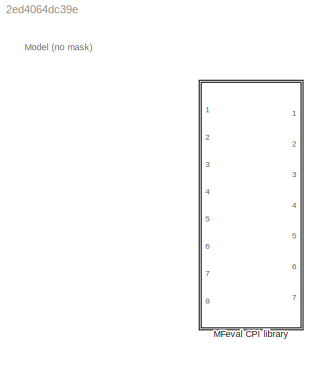
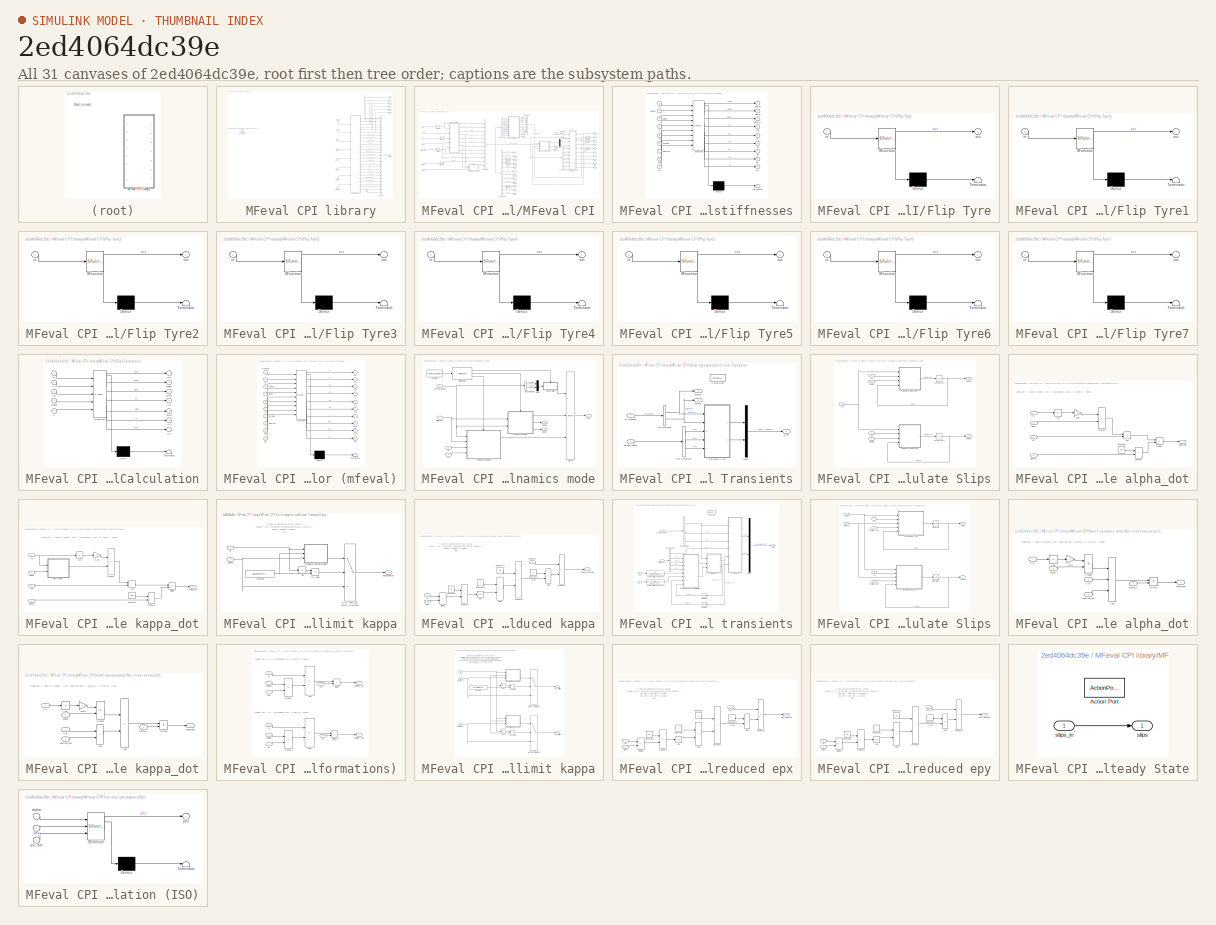
[diagram: thumbnail index - all 31 canvases of the model, root first then tree order]
MODEL slx_2ed4064dc39e
KIND library
CONFIG AbsTol = auto
CONFIG EnableMultiTasking = off
CONFIG FixedStep = auto
CONFIG MaxStep = auto
CONFIG MinStep = auto
CONFIG RelTol = 1e-3
CONFIG SampleTimeConstraint = Unconstrained
CONFIG SolverName = VariableStepAuto
CONFIG StartTime = 0.0
CONFIG StopTime = 10.0
BLOCK [SubSystem] MFeval CPI library
  Ports = [8, 7]
  RequestExecContextInheritance = off
BLOCK [BusCreator] MFeval CPI library/Bus Creator
  DisplayOption = bar
  InheritFromInputs = on
  Inputs = 27
  Ports = [27, 1]
BLOCK [Inport] MFeval CPI library/Camber
  Port = 4
BLOCK [Outport] MFeval CPI library/Fx
  VectorParamsAs1DForOutWhenUnconnected = off
BLOCK [Outport] MFeval CPI library/Fy
  Port = 2
  VectorParamsAs1DForOutWhenUnconnected = off
BLOCK [Inport] MFeval CPI library/Fz
  Port = 6
BLOCK [Outport] MFeval CPI library/Fz 
  Port = 3
  VectorParamsAs1DForOutWhenUnconnected = off
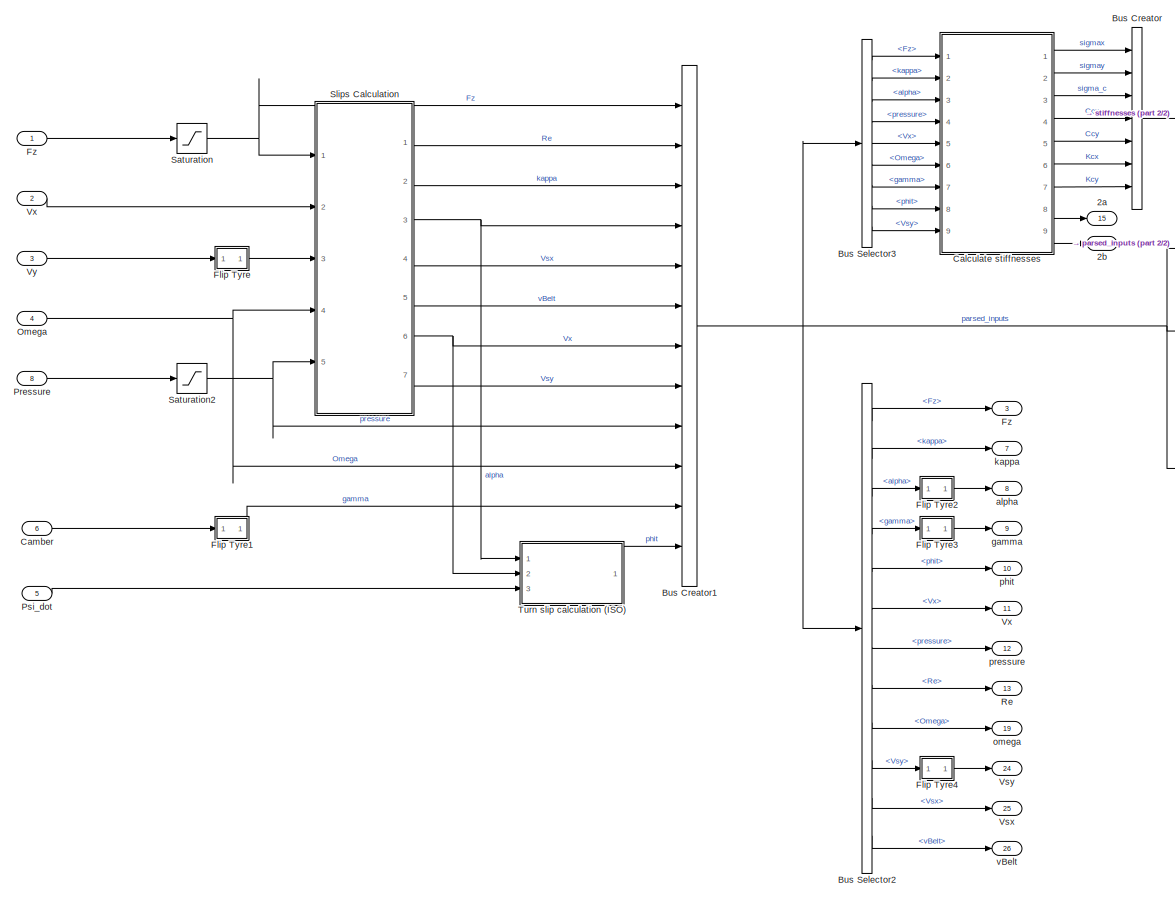
[diagram: MFeval CPI library/MFeval CPI - part 1/2, left side, full height]
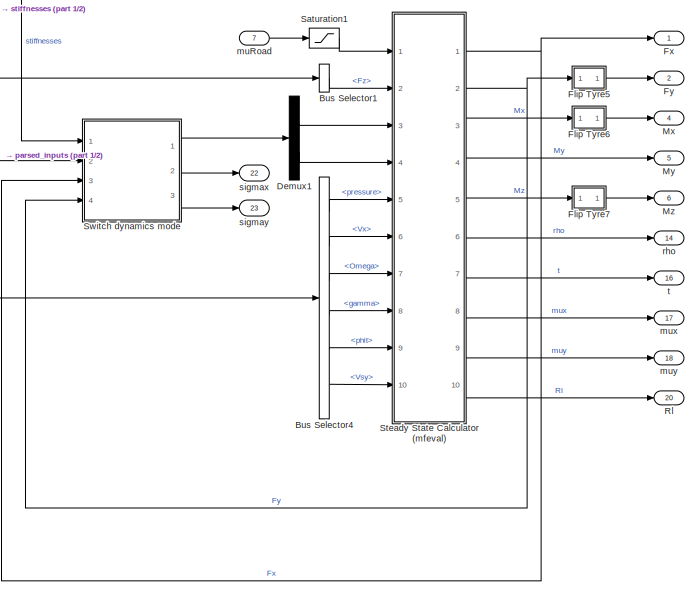
[diagram: MFeval CPI library/MFeval CPI - part 2/2, middle right region]
BLOCK [SubSystem] MFeval CPI library/MFeval CPI
  Ports = [8, 26]
  RequestExecContextInheritance = off
BLOCK [Outport] MFeval CPI library/MFeval CPI/2a
  Port = 15
  VectorParamsAs1DForOutWhenUnconnected = off
BLOCK [Outport] MFeval CPI library/MFeval CPI/2b
  Port = 21
  VectorParamsAs1DForOutWhenUnconnected = off
BLOCK [BusCreator] MFeval CPI library/MFeval CPI/Bus Creator
  DisplayOption = bar
  InheritFromInputs = on
  Inputs = 7
  Ports = [7, 1]
BLOCK [BusCreator] MFeval CPI library/MFeval CPI/Bus Creator1
  DisplayOption = bar
  InheritFromInputs = on
  Inputs = 12
  Ports = [12, 1]
BLOCK [BusSelector] MFeval CPI library/MFeval CPI/Bus Selector1
  OutputSignals = Fz
  Ports = [1, 1]
BLOCK [BusSelector] MFeval CPI library/MFeval CPI/Bus Selector2
  OutputSignals = Fz,kappa,alpha,gamma,phit,Vx,pressure,Re,Omega,Vsy,Vsx,vBelt
  Ports = [1, 12]
BLOCK [BusSelector] MFeval CPI library/MFeval CPI/Bus Selector3
  OutputSignals = Fz,kappa,alpha,pressure,Vx,Omega,gamma,phit,Vsy
  Ports = [1, 9]
BLOCK [BusSelector] MFeval CPI library/MFeval CPI/Bus Selector4
  OutputSignals = pressure,Vx,Omega,gamma,phit,Vsy
  Ports = [1, 6]
BLOCK [SubSystem] MFeval CPI library/MFeval CPI/Calculate stiffnesses
  ErrorFcn = Stateflow.Translate.translate
  PermitHierarchicalResolution = ExplicitOnly
  Ports = [9, 9]
  RequestExecContextInheritance = off
  SFBlockType = MATLAB Function
  TreatAsAtomicUnit = on
BLOCK [Demux] MFeval CPI library/MFeval CPI/Calculate stiffnesses/ Demux 
  Outputs = 1
  Ports = [1, 1]
BLOCK [S-Function] MFeval CPI library/MFeval CPI/Calculate stiffnesses/ SFunction 
  EnableBusSupport = off
  FunctionName = sf_sfun
  Parameters = parameterStruct,userDynamics,userUseMode
  PortCounts = [9 10]
  Ports = [9, 10]
  SFcnIsStateOwnerBlock = off
  SFunctionDeploymentMode = off
  Tag = Stateflow S-Function 17
BLOCK [Terminator] MFeval CPI library/MFeval CPI/Calculate stiffnesses/ Terminator 
BLOCK [Outport] MFeval CPI library/MFeval CPI/Calculate stiffnesses/Ccx
  Port = 4
  VectorParamsAs1DForOutWhenUnconnected = off
BLOCK [Outport] MFeval CPI library/MFeval CPI/Calculate stiffnesses/Ccy
  Port = 5
  VectorParamsAs1DForOutWhenUnconnected = off
BLOCK [Inport] MFeval CPI library/MFeval CPI/Calculate stiffnesses/Fz
BLOCK [Outport] MFeval CPI library/MFeval CPI/Calculate stiffnesses/Kcx
  Port = 6
  VectorParamsAs1DForOutWhenUnconnected = off
BLOCK [Outport] MFeval CPI library/MFeval CPI/Calculate stiffnesses/Kcy
  Port = 7
  VectorParamsAs1DForOutWhenUnconnected = off
BLOCK [Inport] MFeval CPI library/MFeval CPI/Calculate stiffnesses/Vsy
  Port = 9
BLOCK [Inport] MFeval CPI library/MFeval CPI/Calculate stiffnesses/Vx
  Port = 5
BLOCK [Outport] MFeval CPI library/MFeval CPI/Calculate stiffnesses/a2
  Port = 8
  VectorParamsAs1DForOutWhenUnconnected = off
BLOCK [Inport] MFeval CPI library/MFeval CPI/Calculate stiffnesses/alpha
  Port = 3
BLOCK [Outport] MFeval CPI library/MFeval CPI/Calculate stiffnesses/b2
  Port = 9
  VectorParamsAs1DForOutWhenUnconnected = off
BLOCK [Inport] MFeval CPI library/MFeval CPI/Calculate stiffnesses/gamma
  Port = 7
BLOCK [Inport] MFeval CPI library/MFeval CPI/Calculate stiffnesses/kappa
  Port = 2
BLOCK [Inport] MFeval CPI library/MFeval CPI/Calculate stiffnesses/omega
  Port = 6
BLOCK [Inport] MFeval CPI library/MFeval CPI/Calculate stiffnesses/p
  Port = 4
BLOCK [Inport] MFeval CPI library/MFeval CPI/Calculate stiffnesses/phit
  Port = 8
BLOCK [Outport] MFeval CPI library/MFeval CPI/Calculate stiffnesses/sigma_c
  Port = 3
  VectorParamsAs1DForOutWhenUnconnected = off
BLOCK [Outport] MFeval CPI library/MFeval CPI/Calculate stiffnesses/sigmax
  VectorParamsAs1DForOutWhenUnconnected = off
BLOCK [Outport] MFeval CPI library/MFeval CPI/Calculate stiffnesses/sigmay
  Port = 2
  VectorParamsAs1DForOutWhenUnconnected = off
BLOCK [Inport] MFeval CPI library/MFeval CPI/Camber
  Port = 6
BLOCK [Demux] MFeval CPI library/MFeval CPI/Demux1
  Outputs = 2
  Ports = [1, 2]
BLOCK [SubSystem] MFeval CPI library/MFeval CPI/Flip Tyre
  ErrorFcn = Stateflow.Translate.translate
  PermitHierarchicalResolution = ExplicitOnly
  Ports = [1, 1]
  RequestExecContextInheritance = off
  SFBlockType = MATLAB Function
  TreatAsAtomicUnit = on
BLOCK [Demux] MFeval CPI library/MFeval CPI/Flip Tyre/ Demux 
  Outputs = 1
  Ports = [1, 1]
BLOCK [S-Function] MFeval CPI library/MFeval CPI/Flip Tyre/ SFunction 
  EnableBusSupport = off
  FunctionName = sf_sfun
  Parameters = flipSide
  PortCounts = [1 2]
  Ports = [1, 2]
  SFcnIsStateOwnerBlock = off
  SFunctionDeploymentMode = off
  Tag = Stateflow S-Function 7
BLOCK [Terminator] MFeval CPI library/MFeval CPI/Flip Tyre/ Terminator 
BLOCK [Inport] MFeval CPI library/MFeval CPI/Flip Tyre/in
BLOCK [Outport] MFeval CPI library/MFeval CPI/Flip Tyre/out
  VectorParamsAs1DForOutWhenUnconnected = off
BLOCK [SubSystem] MFeval CPI library/MFeval CPI/Flip Tyre1
  ErrorFcn = Stateflow.Translate.translate
  PermitHierarchicalResolution = ExplicitOnly
  Ports = [1, 1]
  RequestExecContextInheritance = off
  SFBlockType = MATLAB Function
  TreatAsAtomicUnit = on
BLOCK [Demux] MFeval CPI library/MFeval CPI/Flip Tyre1/ Demux 
  Outputs = 1
  Ports = [1, 1]
BLOCK [S-Function] MFeval CPI library/MFeval CPI/Flip Tyre1/ SFunction 
  EnableBusSupport = off
  FunctionName = sf_sfun
  Parameters = flipSide
  PortCounts = [1 2]
  Ports = [1, 2]
  SFcnIsStateOwnerBlock = off
  SFunctionDeploymentMode = off
  Tag = Stateflow S-Function 3
BLOCK [Terminator] MFeval CPI library/MFeval CPI/Flip Tyre1/ Terminator 
BLOCK [Inport] MFeval CPI library/MFeval CPI/Flip Tyre1/in
BLOCK [Outport] MFeval CPI library/MFeval CPI/Flip Tyre1/out
  VectorParamsAs1DForOutWhenUnconnected = off
BLOCK [SubSystem] MFeval CPI library/MFeval CPI/Flip Tyre2
  ErrorFcn = Stateflow.Translate.translate
  PermitHierarchicalResolution = ExplicitOnly
  Ports = [1, 1]
  RequestExecContextInheritance = off
  SFBlockType = MATLAB Function
  TreatAsAtomicUnit = on
BLOCK [Demux] MFeval CPI library/MFeval CPI/Flip Tyre2/ Demux 
  Outputs = 1
  Ports = [1, 1]
BLOCK [S-Function] MFeval CPI library/MFeval CPI/Flip Tyre2/ SFunction 
  EnableBusSupport = off
  FunctionName = sf_sfun
  Parameters = flipSide
  PortCounts = [1 2]
  Ports = [1, 2]
  SFcnIsStateOwnerBlock = off
  SFunctionDeploymentMode = off
  Tag = Stateflow S-Function 6
BLOCK [Terminator] MFeval CPI library/MFeval CPI/Flip Tyre2/ Terminator 
BLOCK [Inport] MFeval CPI library/MFeval CPI/Flip Tyre2/in
BLOCK [Outport] MFeval CPI library/MFeval CPI/Flip Tyre2/out
  VectorParamsAs1DForOutWhenUnconnected = off
BLOCK [SubSystem] MFeval CPI library/MFeval CPI/Flip Tyre3
  ErrorFcn = Stateflow.Translate.translate
  PermitHierarchicalResolution = ExplicitOnly
  Ports = [1, 1]
  RequestExecContextInheritance = off
  SFBlockType = MATLAB Function
  TreatAsAtomicUnit = on
BLOCK [Demux] MFeval CPI library/MFeval CPI/Flip Tyre3/ Demux 
  Outputs = 1
  Ports = [1, 1]
BLOCK [S-Function] MFeval CPI library/MFeval CPI/Flip Tyre3/ SFunction 
  EnableBusSupport = off
  FunctionName = sf_sfun
  Parameters = flipSide
  PortCounts = [1 2]
  Ports = [1, 2]
  SFcnIsStateOwnerBlock = off
  SFunctionDeploymentMode = off
  Tag = Stateflow S-Function 8
BLOCK [Terminator] MFeval CPI library/MFeval CPI/Flip Tyre3/ Terminator 
BLOCK [Inport] MFeval CPI library/MFeval CPI/Flip Tyre3/in
BLOCK [Outport] MFeval CPI library/MFeval CPI/Flip Tyre3/out
  VectorParamsAs1DForOutWhenUnconnected = off
BLOCK [SubSystem] MFeval CPI library/MFeval CPI/Flip Tyre4
  ErrorFcn = Stateflow.Translate.translate
  PermitHierarchicalResolution = ExplicitOnly
  Ports = [1, 1]
  RequestExecContextInheritance = off
  SFBlockType = MATLAB Function
  TreatAsAtomicUnit = on
BLOCK [Demux] MFeval CPI library/MFeval CPI/Flip Tyre4/ Demux 
  Outputs = 1
  Ports = [1, 1]
BLOCK [S-Function] MFeval CPI library/MFeval CPI/Flip Tyre4/ SFunction 
  EnableBusSupport = off
  FunctionName = sf_sfun
  Parameters = flipSide
  PortCounts = [1 2]
  Ports = [1, 2]
  SFcnIsStateOwnerBlock = off
  SFunctionDeploymentMode = off
  Tag = Stateflow S-Function 19
BLOCK [Terminator] MFeval CPI library/MFeval CPI/Flip Tyre4/ Terminator 
BLOCK [Inport] MFeval CPI library/MFeval CPI/Flip Tyre4/in
BLOCK [Outport] MFeval CPI library/MFeval CPI/Flip Tyre4/out
  VectorParamsAs1DForOutWhenUnconnected = off
BLOCK [SubSystem] MFeval CPI library/MFeval CPI/Flip Tyre5
  ErrorFcn = Stateflow.Translate.translate
  PermitHierarchicalResolution = ExplicitOnly
  Ports = [1, 1]
  RequestExecContextInheritance = off
  SFBlockType = MATLAB Function
  TreatAsAtomicUnit = on
BLOCK [Demux] MFeval CPI library/MFeval CPI/Flip Tyre5/ Demux 
  Outputs = 1
  Ports = [1, 1]
BLOCK [S-Function] MFeval CPI library/MFeval CPI/Flip Tyre5/ SFunction 
  EnableBusSupport = off
  FunctionName = sf_sfun
  Parameters = flipSide
  PortCounts = [1 2]
  Ports = [1, 2]
  SFcnIsStateOwnerBlock = off
  SFunctionDeploymentMode = off
  Tag = Stateflow S-Function 9
BLOCK [Terminator] MFeval CPI library/MFeval CPI/Flip Tyre5/ Terminator 
BLOCK [Inport] MFeval CPI library/MFeval CPI/Flip Tyre5/in
BLOCK [Outport] MFeval CPI library/MFeval CPI/Flip Tyre5/out
  VectorParamsAs1DForOutWhenUnconnected = off
BLOCK [SubSystem] MFeval CPI library/MFeval CPI/Flip Tyre6
  ErrorFcn = Stateflow.Translate.translate
  PermitHierarchicalResolution = ExplicitOnly
  Ports = [1, 1]
  RequestExecContextInheritance = off
  SFBlockType = MATLAB Function
  TreatAsAtomicUnit = on
BLOCK [Demux] MFeval CPI library/MFeval CPI/Flip Tyre6/ Demux 
  Outputs = 1
  Ports = [1, 1]
BLOCK [S-Function] MFeval CPI library/MFeval CPI/Flip Tyre6/ SFunction 
  EnableBusSupport = off
  FunctionName = sf_sfun
  Parameters = flipSide
  PortCounts = [1 2]
  Ports = [1, 2]
  SFcnIsStateOwnerBlock = off
  SFunctionDeploymentMode = off
  Tag = Stateflow S-Function 10
BLOCK [Terminator] MFeval CPI library/MFeval CPI/Flip Tyre6/ Terminator 
BLOCK [Inport] MFeval CPI library/MFeval CPI/Flip Tyre6/in
BLOCK [Outport] MFeval CPI library/MFeval CPI/Flip Tyre6/out
  VectorParamsAs1DForOutWhenUnconnected = off
BLOCK [SubSystem] MFeval CPI library/MFeval CPI/Flip Tyre7
  ErrorFcn = Stateflow.Translate.translate
  PermitHierarchicalResolution = ExplicitOnly
  Ports = [1, 1]
  RequestExecContextInheritance = off
  SFBlockType = MATLAB Function
  TreatAsAtomicUnit = on
BLOCK [Demux] MFeval CPI library/MFeval CPI/Flip Tyre7/ Demux 
  Outputs = 1
  Ports = [1, 1]
BLOCK [S-Function] MFeval CPI library/MFeval CPI/Flip Tyre7/ SFunction 
  EnableBusSupport = off
  FunctionName = sf_sfun
  Parameters = flipSide
  PortCounts = [1 2]
  Ports = [1, 2]
  SFcnIsStateOwnerBlock = off
  SFunctionDeploymentMode = off
  Tag = Stateflow S-Function 18
BLOCK [Terminator] MFeval CPI library/MFeval CPI/Flip Tyre7/ Terminator 
BLOCK [Inport] MFeval CPI library/MFeval CPI/Flip Tyre7/in
BLOCK [Outport] MFeval CPI library/MFeval CPI/Flip Tyre7/out
  VectorParamsAs1DForOutWhenUnconnected = off
BLOCK [Outport] MFeval CPI library/MFeval CPI/Fx
  VectorParamsAs1DForOutWhenUnconnected = off
BLOCK [Outport] MFeval CPI library/MFeval CPI/Fy
  Port = 2
  VectorParamsAs1DForOutWhenUnconnected = off
BLOCK [Inport] MFeval CPI library/MFeval CPI/Fz
BLOCK [Outport] MFeval CPI library/MFeval CPI/Fz 
  Port = 3
  VectorParamsAs1DForOutWhenUnconnected = off
BLOCK [Outport] MFeval CPI library/MFeval CPI/Mx
  Port = 4
  VectorParamsAs1DForOutWhenUnconnected = off
BLOCK [Outport] MFeval CPI library/MFeval CPI/My
  Port = 5
  VectorParamsAs1DForOutWhenUnconnected = off
BLOCK [Outport] MFeval CPI library/MFeval CPI/Mz
  Port = 6
  VectorParamsAs1DForOutWhenUnconnected = off
BLOCK [Inport] MFeval CPI library/MFeval CPI/Omega
  Port = 4
BLOCK [Inport] MFeval CPI library/MFeval CPI/Pressure
  Port = 8
BLOCK [Inport] MFeval CPI library/MFeval CPI/Psi_dot
  Port = 5
BLOCK [Outport] MFeval CPI library/MFeval CPI/Re
  Port = 13
  VectorParamsAs1DForOutWhenUnconnected = off
BLOCK [Outport] MFeval CPI library/MFeval CPI/Rl
  Port = 20
  VectorParamsAs1DForOutWhenUnconnected = off
BLOCK [Saturate] MFeval CPI library/MFeval CPI/Saturation
  LowerLimit = 1e-3
  UpperLimit = parameterStruct.FZMAX*2
  ZeroCross = off
BLOCK [Saturate] MFeval CPI library/MFeval CPI/Saturation1
  LowerLimit = 0
  UpperLimit = Inf
  ZeroCross = off
BLOCK [Saturate] MFeval CPI library/MFeval CPI/Saturation2
  LowerLimit = parameterStruct.PRESMIN
  UpperLimit = parameterStruct.PRESMAX
  ZeroCross = off
BLOCK [SubSystem] MFeval CPI library/MFeval CPI/Slips Calculation
  ErrorFcn = Stateflow.Translate.translate
  PermitHierarchicalResolution = ExplicitOnly
  Ports = [5, 7]
  RequestExecContextInheritance = off
  SFBlockType = MATLAB Function
  TreatAsAtomicUnit = on
BLOCK [Demux] MFeval CPI library/MFeval CPI/Slips Calculation/ Demux 
  Outputs = 1
  Ports = [1, 1]
BLOCK [S-Function] MFeval CPI library/MFeval CPI/Slips Calculation/ SFunction 
  EnableBusSupport = off
  FunctionName = sf_sfun
  Parameters = parameterStruct
  PortCounts = [5 8]
  Ports = [5, 8]
  SFcnIsStateOwnerBlock = off
  SFunctionDeploymentMode = off
  Tag = Stateflow S-Function 11
BLOCK [Terminator] MFeval CPI library/MFeval CPI/Slips Calculation/ Terminator 
BLOCK [Inport] MFeval CPI library/MFeval CPI/Slips Calculation/Fz
BLOCK [Outport] MFeval CPI library/MFeval CPI/Slips Calculation/Re
  VectorParamsAs1DForOutWhenUnconnected = off
BLOCK [Outport] MFeval CPI library/MFeval CPI/Slips Calculation/Vsx
  Port = 4
  VectorParamsAs1DForOutWhenUnconnected = off
BLOCK [Outport] MFeval CPI library/MFeval CPI/Slips Calculation/Vsy
  Port = 7
  VectorParamsAs1DForOutWhenUnconnected = off
BLOCK [Inport] MFeval CPI library/MFeval CPI/Slips Calculation/Vsy 
  Port = 3
BLOCK [Outport] MFeval CPI library/MFeval CPI/Slips Calculation/Vx
  Port = 6
  VectorParamsAs1DForOutWhenUnconnected = off
BLOCK [Inport] MFeval CPI library/MFeval CPI/Slips Calculation/Vx 
  Port = 2
BLOCK [Outport] MFeval CPI library/MFeval CPI/Slips Calculation/alpha
  Port = 3
  VectorParamsAs1DForOutWhenUnconnected = off
BLOCK [Outport] MFeval CPI library/MFeval CPI/Slips Calculation/kappa
  Port = 2
  VectorParamsAs1DForOutWhenUnconnected = off
BLOCK [Inport] MFeval CPI library/MFeval CPI/Slips Calculation/omega
  Port = 4
BLOCK [Inport] MFeval CPI library/MFeval CPI/Slips Calculation/p
  Port = 5
BLOCK [Outport] MFeval CPI library/MFeval CPI/Slips Calculation/vBelt
  Port = 5
  VectorParamsAs1DForOutWhenUnconnected = off
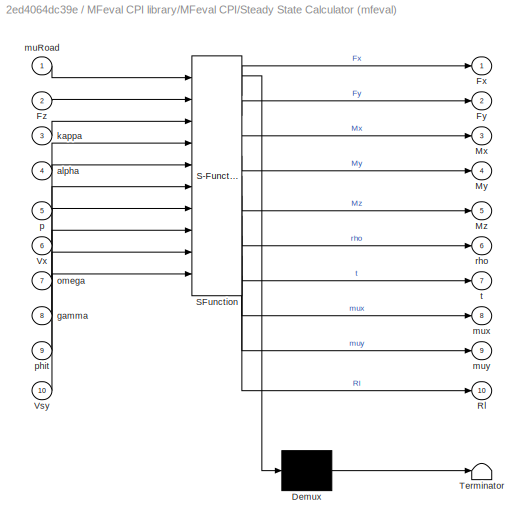
BLOCK [SubSystem] MFeval CPI library/MFeval CPI/Steady State Calculator (mfeval)
  ErrorFcn = Stateflow.Translate.translate
  PermitHierarchicalResolution = ExplicitOnly
  Ports = [10, 10]
  RequestExecContextInheritance = off
  SFBlockType = MATLAB Function
  TreatAsAtomicUnit = on
BLOCK [Demux] MFeval CPI library/MFeval CPI/Steady State Calculator (mfeval)/ Demux 
  Outputs = 1
  Ports = [1, 1]
BLOCK [S-Function] MFeval CPI library/MFeval CPI/Steady State Calculator (mfeval)/ SFunction 
  EnableBusSupport = off
  FunctionName = sf_sfun
  Parameters = parameterStruct,userDynamics,userUseMode
  PortCounts = [10 11]
  Ports = [10, 11]
  SFcnIsStateOwnerBlock = off
  SFunctionDeploymentMode = off
  Tag = Stateflow S-Function 4
BLOCK [Terminator] MFeval CPI library/MFeval CPI/Steady State Calculator (mfeval)/ Terminator 
BLOCK [Outport] MFeval CPI library/MFeval CPI/Steady State Calculator (mfeval)/Fx
  VectorParamsAs1DForOutWhenUnconnected = off
BLOCK [Outport] MFeval CPI library/MFeval CPI/Steady State Calculator (mfeval)/Fy
  Port = 2
  VectorParamsAs1DForOutWhenUnconnected = off
BLOCK [Inport] MFeval CPI library/MFeval CPI/Steady State Calculator (mfeval)/Fz
  Port = 2
BLOCK [Outport] MFeval CPI library/MFeval CPI/Steady State Calculator (mfeval)/Mx
  Port = 3
  VectorParamsAs1DForOutWhenUnconnected = off
BLOCK [Outport] MFeval CPI library/MFeval CPI/Steady State Calculator (mfeval)/My
  Port = 4
  VectorParamsAs1DForOutWhenUnconnected = off
BLOCK [Outport] MFeval CPI library/MFeval CPI/Steady State Calculator (mfeval)/Mz
  Port = 5
  VectorParamsAs1DForOutWhenUnconnected = off
BLOCK [Outport] MFeval CPI library/MFeval CPI/Steady State Calculator (mfeval)/Rl
  Port = 10
  VectorParamsAs1DForOutWhenUnconnected = off
BLOCK [Inport] MFeval CPI library/MFeval CPI/Steady State Calculator (mfeval)/Vsy
  Port = 10
BLOCK [Inport] MFeval CPI library/MFeval CPI/Steady State Calculator (mfeval)/Vx
  Port = 6
BLOCK [Inport] MFeval CPI library/MFeval CPI/Steady State Calculator (mfeval)/alpha
  Port = 4
BLOCK [Inport] MFeval CPI library/MFeval CPI/Steady State Calculator (mfeval)/gamma
  Port = 8
BLOCK [Inport] MFeval CPI library/MFeval CPI/Steady State Calculator (mfeval)/kappa
  Port = 3
BLOCK [Inport] MFeval CPI library/MFeval CPI/Steady State Calculator (mfeval)/muRoad
BLOCK [Outport] MFeval CPI library/MFeval CPI/Steady State Calculator (mfeval)/mux
  Port = 8
  VectorParamsAs1DForOutWhenUnconnected = off
BLOCK [Outport] MFeval CPI library/MFeval CPI/Steady State Calculator (mfeval)/muy
  Port = 9
  VectorParamsAs1DForOutWhenUnconnected = off
BLOCK [Inport] MFeval CPI library/MFeval CPI/Steady State Calculator (mfeval)/omega
  Port = 7
BLOCK [Inport] MFeval CPI library/MFeval CPI/Steady State Calculator (mfeval)/p
  Port = 5
BLOCK [Inport] MFeval CPI library/MFeval CPI/Steady State Calculator (mfeval)/phit
  Port = 9
BLOCK [Outport] MFeval CPI library/MFeval CPI/Steady State Calculator (mfeval)/rho
  Port = 6
  VectorParamsAs1DForOutWhenUnconnected = off
BLOCK [Outport] MFeval CPI library/MFeval CPI/Steady State Calculator (mfeval)/t
  Port = 7
  VectorParamsAs1DForOutWhenUnconnected = off
BLOCK [SubSystem] MFeval CPI library/MFeval CPI/Switch dynamics mode
  Ports = [4, 3]
  RequestExecContextInheritance = off
BLOCK [BusSelector] MFeval CPI library/MFeval CPI/Switch dynamics mode/Bus Selector5
  OutputSignals = kappa,alpha
  Ports = [1, 2]
BLOCK [Constant] MFeval CPI library/MFeval CPI/Switch dynamics mode/Constant
  Value = userDynamics
BLOCK [Inport] MFeval CPI library/MFeval CPI/Switch dynamics mode/Fx
  Port = 3
BLOCK [Inport] MFeval CPI library/MFeval CPI/Switch dynamics mode/Fy
  Port = 4
BLOCK [SubSystem] MFeval CPI library/MFeval CPI/Switch dynamics mode/Linear Transients
  Ports = [2, 3, 0, 0, 0, 0, 0, 1]
  RequestExecContextInheritance = off
  TreatAsAtomicUnit = on
BLOCK [ActionPort] MFeval CPI library/MFeval CPI/Switch dynamics mode/Linear Transients/Action Port
  ActionPortLabel = case: { }
BLOCK [BusSelector] MFeval CPI library/MFeval CPI/Switch dynamics mode/Linear Transients/Bus Selector
  OutputSignals = sigmax,sigmay
  Ports = [1, 2]
BLOCK [BusSelector] MFeval CPI library/MFeval CPI/Switch dynamics mode/Linear Transients/Bus Selector5
  OutputSignals = Vsx,Vsy,Vx
  Ports = [1, 3]
BLOCK [SubSystem] MFeval CPI library/MFeval CPI/Switch dynamics mode/Linear Transients/Calculate Slips
  Ports = [5, 2]
  RequestExecContextInheritance = off
  TreatAsAtomicUnit = on
BLOCK [Integrator] MFeval CPI library/MFeval CPI/Switch dynamics mode/Linear Transients/Calculate Slips/Integrator
  Ports = [1, 1]
BLOCK [Integrator] MFeval CPI library/MFeval CPI/Switch dynamics mode/Linear Transients/Calculate Slips/Integrator1
  Ports = [1, 1]
BLOCK [Inport] MFeval CPI library/MFeval CPI/Switch dynamics mode/Linear Transients/Calculate Slips/Vsx
  Port = 3
BLOCK [Inport] MFeval CPI library/MFeval CPI/Switch dynamics mode/Linear Transients/Calculate Slips/Vsy
  Port = 4
BLOCK [Inport] MFeval CPI library/MFeval CPI/Switch dynamics mode/Linear Transients/Calculate Slips/Vx
  Port = 5
BLOCK [Outport] MFeval CPI library/MFeval CPI/Switch dynamics mode/Linear Transients/Calculate Slips/alpha
  Port = 2
  VectorParamsAs1DForOutWhenUnconnected = off
BLOCK [SubSystem] MFeval CPI library/MFeval CPI/Switch dynamics mode/Linear Transients/Calculate Slips/calculate alpha_dot
  Ports = [4, 1]
  RequestExecContextInheritance = off
BLOCK [Abs] MFeval CPI library/MFeval CPI/Switch dynamics mode/Linear Transients/Calculate Slips/calculate alpha_dot/Abs
  SaturateOnIntegerOverflow = off
  ZeroCross = off
BLOCK [Sum] MFeval CPI library/MFeval CPI/Switch dynamics mode/Linear Transients/Calculate Slips/calculate alpha_dot/Add
  IconShape = rectangular
  Ports = [2, 1]
BLOCK [Constant] MFeval CPI library/MFeval CPI/Switch dynamics mode/Linear Transients/Calculate Slips/calculate alpha_dot/Constant
  Value = 0.02
BLOCK [Product] MFeval CPI library/MFeval CPI/Switch dynamics mode/Linear Transients/Calculate Slips/calculate alpha_dot/Divide
  Inputs = */
  Ports = [2, 1]
BLOCK [Gain] MFeval CPI library/MFeval CPI/Switch dynamics mode/Linear Transients/Calculate Slips/calculate alpha_dot/Gain
  Gain = -1
BLOCK [MinMax] MFeval CPI library/MFeval CPI/Switch dynamics mode/Linear Transients/Calculate Slips/calculate alpha_dot/MinMax
  Function = max
  Inputs = 2
  Ports = [2, 1]
  ZeroCross = off
BLOCK [Product] MFeval CPI library/MFeval CPI/Switch dynamics mode/Linear Transients/Calculate Slips/calculate alpha_dot/Product
  Ports = [2, 1]
BLOCK [Inport] MFeval CPI library/MFeval CPI/Switch dynamics mode/Linear Transients/Calculate Slips/calculate alpha_dot/Vsy
  Port = 2
BLOCK [Inport] MFeval CPI library/MFeval CPI/Switch dynamics mode/Linear Transients/Calculate Slips/calculate alpha_dot/Vx
BLOCK [Inport] MFeval CPI library/MFeval CPI/Switch dynamics mode/Linear Transients/Calculate Slips/calculate alpha_dot/alpha
  Port = 4
BLOCK [Outport] MFeval CPI library/MFeval CPI/Switch dynamics mode/Linear Transients/Calculate Slips/calculate alpha_dot/alpha_dot
  VectorParamsAs1DForOutWhenUnconnected = off
BLOCK [Inport] MFeval CPI library/MFeval CPI/Switch dynamics mode/Linear Transients/Calculate Slips/calculate alpha_dot/sigmay
  Port = 3
BLOCK [SubSystem] MFeval CPI library/MFeval CPI/Switch dynamics mode/Linear Transients/Calculate Slips/calculate kappa_dot
  Ports = [4, 1]
  RequestExecContextInheritance = off
BLOCK [Abs] MFeval CPI library/MFeval CPI/Switch dynamics mode/Linear Transients/Calculate Slips/calculate kappa_dot/Abs
  SaturateOnIntegerOverflow = off
  ZeroCross = off
BLOCK [Sum] MFeval CPI library/MFeval CPI/Switch dynamics mode/Linear Transients/Calculate Slips/calculate kappa_dot/Add
  IconShape = rectangular
  Inputs = +-
  Ports = [2, 1]
BLOCK [Constant] MFeval CPI library/MFeval CPI/Switch dynamics mode/Linear Transients/Calculate Slips/calculate kappa_dot/Constant
  Value = 0.02
BLOCK [Product] MFeval CPI library/MFeval CPI/Switch dynamics mode/Linear Transients/Calculate Slips/calculate kappa_dot/Divide
  Inputs = */
  Ports = [2, 1]
BLOCK [Gain] MFeval CPI library/MFeval CPI/Switch dynamics mode/Linear Transients/Calculate Slips/calculate kappa_dot/Gain
  Gain = -1
BLOCK [MinMax] MFeval CPI library/MFeval CPI/Switch dynamics mode/Linear Transients/Calculate Slips/calculate kappa_dot/MinMax
  Function = max
  Inputs = 2
  Ports = [2, 1]
  ZeroCross = off
BLOCK [Product] MFeval CPI library/MFeval CPI/Switch dynamics mode/Linear Transients/Calculate Slips/calculate kappa_dot/Product
  Ports = [2, 1]
BLOCK [Inport] MFeval CPI library/MFeval CPI/Switch dynamics mode/Linear Transients/Calculate Slips/calculate kappa_dot/Vsx
  Port = 2
BLOCK [Inport] MFeval CPI library/MFeval CPI/Switch dynamics mode/Linear Transients/Calculate Slips/calculate kappa_dot/Vx
BLOCK [Inport] MFeval CPI library/MFeval CPI/Switch dynamics mode/Linear Transients/Calculate Slips/calculate kappa_dot/kappa
  Port = 4
BLOCK [Outport] MFeval CPI library/MFeval CPI/Switch dynamics mode/Linear Transients/Calculate Slips/calculate kappa_dot/kappa_dot
  VectorParamsAs1DForOutWhenUnconnected = off
BLOCK [SubSystem] MFeval CPI library/MFeval CPI/Switch dynamics mode/Linear Transients/Calculate Slips/calculate kappa_dot/limit kappa
  Ports = [2, 1]
  RequestExecContextInheritance = off
BLOCK [Abs] MFeval CPI library/MFeval CPI/Switch dynamics mode/Linear Transients/Calculate Slips/calculate kappa_dot/limit kappa/Abs
  SaturateOnIntegerOverflow = off
  ZeroCross = off
BLOCK [SubSystem] MFeval CPI library/MFeval CPI/Switch dynamics mode/Linear Transients/Calculate Slips/calculate kappa_dot/limit kappa/Calculate reduced kappa
  Ports = [3, 1]
  RequestExecContextInheritance = off
BLOCK [Sum] MFeval CPI library/MFeval CPI/Switch dynamics mode/Linear Transients/Calculate Slips/calculate kappa_dot/limit kappa/Calculate reduced kappa/Add1
  IconShape = rectangular
  Ports = [2, 1]
BLOCK [Sum] MFeval CPI library/MFeval CPI/Switch dynamics mode/Linear Transients/Calculate Slips/calculate kappa_dot/limit kappa/Calculate reduced kappa/Add2
  IconShape = rectangular
  Inputs = +-
  Ports = [2, 1]
BLOCK [Constant] MFeval CPI library/MFeval CPI/Switch dynamics mode/Linear Transients/Calculate Slips/calculate kappa_dot/limit kappa/Calculate reduced kappa/Constant1
  Value = 0.5
BLOCK [Constant] MFeval CPI library/MFeval CPI/Switch dynamics mode/Linear Transients/Calculate Slips/calculate kappa_dot/limit kappa/Calculate reduced kappa/Constant2
BLOCK [Constant] MFeval CPI library/MFeval CPI/Switch dynamics mode/Linear Transients/Calculate Slips/calculate kappa_dot/limit kappa/Calculate reduced kappa/Constant3
  Value = pi()
BLOCK [Constant] MFeval CPI library/MFeval CPI/Switch dynamics mode/Linear Transients/Calculate Slips/calculate kappa_dot/limit kappa/Calculate reduced kappa/Constant4
BLOCK [Trigonometry] MFeval CPI library/MFeval CPI/Switch dynamics mode/Linear Transients/Calculate Slips/calculate kappa_dot/limit kappa/Calculate reduced kappa/Cos
  Operator = cos
  Ports = [1, 1]
BLOCK [Product] MFeval CPI library/MFeval CPI/Switch dynamics mode/Linear Transients/Calculate Slips/calculate kappa_dot/limit kappa/Calculate reduced kappa/Divide1
  Inputs = */
  Ports = [2, 1]
BLOCK [Product] MFeval CPI library/MFeval CPI/Switch dynamics mode/Linear Transients/Calculate Slips/calculate kappa_dot/limit kappa/Calculate reduced kappa/Product1
  Ports = [2, 1]
BLOCK [Product] MFeval CPI library/MFeval CPI/Switch dynamics mode/Linear Transients/Calculate Slips/calculate kappa_dot/limit kappa/Calculate reduced kappa/Product2
  Ports = [2, 1]
BLOCK [Product] MFeval CPI library/MFeval CPI/Switch dynamics mode/Linear Transients/Calculate Slips/calculate kappa_dot/limit kappa/Calculate reduced kappa/Product3
  Ports = [2, 1]
BLOCK [Inport] MFeval CPI library/MFeval CPI/Switch dynamics mode/Linear Transients/Calculate Slips/calculate kappa_dot/limit kappa/Calculate reduced kappa/Vlow
  Port = 2
BLOCK [Inport] MFeval CPI library/MFeval CPI/Switch dynamics mode/Linear Transients/Calculate Slips/calculate kappa_dot/limit kappa/Calculate reduced kappa/Vx
BLOCK [Inport] MFeval CPI library/MFeval CPI/Switch dynamics mode/Linear Transients/Calculate Slips/calculate kappa_dot/limit kappa/Calculate reduced kappa/kappa_in
  Port = 3
BLOCK [Outport] MFeval CPI library/MFeval CPI/Switch dynamics mode/Linear Transients/Calculate Slips/calculate kappa_dot/limit kappa/Calculate reduced kappa/kappa_reduced
  VectorParamsAs1DForOutWhenUnconnected = off
BLOCK [Constant] MFeval CPI library/MFeval CPI/Switch dynamics mode/Linear Transients/Calculate Slips/calculate kappa_dot/limit kappa/Constant
  Value = parameterStruct.VXLOW
BLOCK [Inport] MFeval CPI library/MFeval CPI/Switch dynamics mode/Linear Transients/Calculate Slips/calculate kappa_dot/limit kappa/Vx
BLOCK [RelationalOperator] MFeval CPI library/MFeval CPI/Switch dynamics mode/Linear Transients/Calculate Slips/calculate kappa_dot/limit kappa/Vx < Vlow
  InputSameDT = off
  Operator = <
  OutDataTypeStr = boolean
  Ports = [2, 1]
  RndMeth = Simplest
  ZeroCross = off
BLOCK [Switch] MFeval CPI library/MFeval CPI/Switch dynamics mode/Linear Transients/Calculate Slips/calculate kappa_dot/limit kappa/if Vx < Vlow use reduced kappa else normal kappa
  Criteria = u2 > Threshold
  InputSameDT = off
  SaturateOnIntegerOverflow = off
BLOCK [Inport] MFeval CPI library/MFeval CPI/Switch dynamics mode/Linear Transients/Calculate Slips/calculate kappa_dot/limit kappa/kappa
  Port = 2
BLOCK [Outport] MFeval CPI library/MFeval CPI/Switch dynamics mode/Linear Transients/Calculate Slips/calculate kappa_dot/limit kappa/kappa_limited
  VectorParamsAs1DForOutWhenUnconnected = off
BLOCK [Inport] MFeval CPI library/MFeval CPI/Switch dynamics mode/Linear Transients/Calculate Slips/calculate kappa_dot/sigmax
  Port = 3
BLOCK [Outport] MFeval CPI library/MFeval CPI/Switch dynamics mode/Linear Transients/Calculate Slips/kappa
  VectorParamsAs1DForOutWhenUnconnected = off
BLOCK [Inport] MFeval CPI library/MFeval CPI/Switch dynamics mode/Linear Transients/Calculate Slips/sigmax
BLOCK [Inport] MFeval CPI library/MFeval CPI/Switch dynamics mode/Linear Transients/Calculate Slips/sigmay
  Port = 2
BLOCK [Mux] MFeval CPI library/MFeval CPI/Switch dynamics mode/Linear Transients/Mux1
  DisplayOption = bar
  Inputs = 2
  Ports = [2, 1]
BLOCK [Inport] MFeval CPI library/MFeval CPI/Switch dynamics mode/Linear Transients/parsed_inputs
  Port = 2
BLOCK [Outport] MFeval CPI library/MFeval CPI/Switch dynamics mode/Linear Transients/sigmax
  Port = 2
  VectorParamsAs1DForOutWhenUnconnected = off
BLOCK [Outport] MFeval CPI library/MFeval CPI/Switch dynamics mode/Linear Transients/sigmay
  Port = 3
  VectorParamsAs1DForOutWhenUnconnected = off
BLOCK [Outport] MFeval CPI library/MFeval CPI/Switch dynamics mode/Linear Transients/slips
  VectorParamsAs1DForOutWhenUnconnected = off
BLOCK [Inport] MFeval CPI library/MFeval CPI/Switch dynamics mode/Linear Transients/stiffnesses
BLOCK [Merge] MFeval CPI library/MFeval CPI/Switch dynamics mode/Merge
  Inputs = 3
  Ports = [3, 1]
BLOCK [Mux] MFeval CPI library/MFeval CPI/Switch dynamics mode/Mux
  DisplayOption = bar
  Inputs = 2
  Ports = [2, 1]
BLOCK [SubSystem] MFeval CPI library/MFeval CPI/Switch dynamics mode/Non linear transients
  Ports = [4, 1, 0, 0, 0, 0, 0, 1]
  RequestExecContextInheritance = off
  TreatAsAtomicUnit = on
BLOCK [ActionPort] MFeval CPI library/MFeval CPI/Switch dynamics mode/Non linear transients/Action Port
  ActionPortLabel = default: { }
BLOCK [BusSelector] MFeval CPI library/MFeval CPI/Switch dynamics mode/Non linear transients/Bus Selector1
  OutputSignals = sigma_c,Ccx,Ccy,Kcx,Kcy
  Ports = [1, 5]
BLOCK [BusSelector] MFeval CPI library/MFeval CPI/Switch dynamics mode/Non linear transients/Bus Selector6
  OutputSignals = Vx,Vsx,Vsy
  Ports = [1, 3]
BLOCK [SubSystem] MFeval CPI library/MFeval CPI/Switch dynamics mode/Non linear transients/Calculate Slips
  Ports = [6, 2]
  RequestExecContextInheritance = off
  TreatAsAtomicUnit = on
BLOCK [Integrator] MFeval CPI library/MFeval CPI/Switch dynamics mode/Non linear transients/Calculate Slips/Integrator
  Ports = [1, 1]
BLOCK [Integrator] MFeval CPI library/MFeval CPI/Switch dynamics mode/Non linear transients/Calculate Slips/Integrator1
  Ports = [1, 1]
BLOCK [Inport] MFeval CPI library/MFeval CPI/Switch dynamics mode/Non linear transients/Calculate Slips/Vsx
  Port = 2
BLOCK [Inport] MFeval CPI library/MFeval CPI/Switch dynamics mode/Non linear transients/Calculate Slips/Vsy
  Port = 3
BLOCK [Inport] MFeval CPI library/MFeval CPI/Switch dynamics mode/Non linear transients/Calculate Slips/Vx
BLOCK [Outport] MFeval CPI library/MFeval CPI/Switch dynamics mode/Non linear transients/Calculate Slips/alpha
  Port = 2
  VectorParamsAs1DForOutWhenUnconnected = off
BLOCK [SubSystem] MFeval CPI library/MFeval CPI/Switch dynamics mode/Non linear transients/Calculate Slips/calculate alpha_dot
  Ports = [5, 1]
  RequestExecContextInheritance = off
BLOCK [Abs] MFeval CPI library/MFeval CPI/Switch dynamics mode/Non linear transients/Calculate Slips/calculate alpha_dot/Abs
  SaturateOnIntegerOverflow = off
  ZeroCross = off
BLOCK [Sum] MFeval CPI library/MFeval CPI/Switch dynamics mode/Non linear transients/Calculate Slips/calculate alpha_dot/Add
  IconShape = rectangular
  Inputs = +++
  Ports = [3, 1]
BLOCK [Product] MFeval CPI library/MFeval CPI/Switch dynamics mode/Non linear transients/Calculate Slips/calculate alpha_dot/Divide
  Inputs = */
  Ports = [2, 1]
BLOCK [Gain] MFeval CPI library/MFeval CPI/Switch dynamics mode/Non linear transients/Calculate Slips/calculate alpha_dot/Gain
  Gain = -1
BLOCK [Product] MFeval CPI library/MFeval CPI/Switch dynamics mode/Non linear transients/Calculate Slips/calculate alpha_dot/Product
  Ports = [2, 1]
BLOCK [Inport] MFeval CPI library/MFeval CPI/Switch dynamics mode/Non linear transients/Calculate Slips/calculate alpha_dot/Vsy
  Port = 2
BLOCK [Inport] MFeval CPI library/MFeval CPI/Switch dynamics mode/Non linear transients/Calculate Slips/calculate alpha_dot/Vx
BLOCK [Inport] MFeval CPI library/MFeval CPI/Switch dynamics mode/Non linear transients/Calculate Slips/calculate alpha_dot/alpha
  Port = 5
BLOCK [Outport] MFeval CPI library/MFeval CPI/Switch dynamics mode/Non linear transients/Calculate Slips/calculate alpha_dot/alpha_dot
  VectorParamsAs1DForOutWhenUnconnected = off
BLOCK [Inport] MFeval CPI library/MFeval CPI/Switch dynamics mode/Non linear transients/Calculate Slips/calculate alpha_dot/epsilony_dot
  Port = 4
BLOCK [Inport] MFeval CPI library/MFeval CPI/Switch dynamics mode/Non linear transients/Calculate Slips/calculate alpha_dot/sigma_c
  Port = 3
BLOCK [SubSystem] MFeval CPI library/MFeval CPI/Switch dynamics mode/Non linear transients/Calculate Slips/calculate kappa_dot
  Ports = [5, 1]
  RequestExecContextInheritance = off
BLOCK [Abs] MFeval CPI library/MFeval CPI/Switch dynamics mode/Non linear transients/Calculate Slips/calculate kappa_dot/Abs
  SaturateOnIntegerOverflow = off
  ZeroCross = off
BLOCK [Sum] MFeval CPI library/MFeval CPI/Switch dynamics mode/Non linear transients/Calculate Slips/calculate kappa_dot/Add
  IconShape = rectangular
  Ports = [2, 1]
BLOCK [Sum] MFeval CPI library/MFeval CPI/Switch dynamics mode/Non linear transients/Calculate Slips/calculate kappa_dot/Add1
  IconShape = rectangular
  Inputs = +-
  Ports = [2, 1]
BLOCK [Product] MFeval CPI library/MFeval CPI/Switch dynamics mode/Non linear transients/Calculate Slips/calculate kappa_dot/Divide
  Inputs = */
  Ports = [2, 1]
BLOCK [Gain] MFeval CPI library/MFeval CPI/Switch dynamics mode/Non linear transients/Calculate Slips/calculate kappa_dot/Gain
  Gain = -1
BLOCK [Product] MFeval CPI library/MFeval CPI/Switch dynamics mode/Non linear transients/Calculate Slips/calculate kappa_dot/Product
  Ports = [2, 1]
BLOCK [Inport] MFeval CPI library/MFeval CPI/Switch dynamics mode/Non linear transients/Calculate Slips/calculate kappa_dot/Vsx
  Port = 2
BLOCK [Inport] MFeval CPI library/MFeval CPI/Switch dynamics mode/Non linear transients/Calculate Slips/calculate kappa_dot/Vx
BLOCK [Inport] MFeval CPI library/MFeval CPI/Switch dynamics mode/Non linear transients/Calculate Slips/calculate kappa_dot/epsilonx_dot
  Port = 4
BLOCK [Inport] MFeval CPI library/MFeval CPI/Switch dynamics mode/Non linear transients/Calculate Slips/calculate kappa_dot/kappa
  Port = 5
BLOCK [Outport] MFeval CPI library/MFeval CPI/Switch dynamics mode/Non linear transients/Calculate Slips/calculate kappa_dot/kappa_dot
  VectorParamsAs1DForOutWhenUnconnected = off
BLOCK [Inport] MFeval CPI library/MFeval CPI/Switch dynamics mode/Non linear transients/Calculate Slips/calculate kappa_dot/sigma_c
  Port = 3
BLOCK [Inport] MFeval CPI library/MFeval CPI/Switch dynamics mode/Non linear transients/Calculate Slips/epsilonx_dot
  Port = 5
BLOCK [Inport] MFeval CPI library/MFeval CPI/Switch dynamics mode/Non linear transients/Calculate Slips/epsilony_dot
  Port = 6
BLOCK [Outport] MFeval CPI library/MFeval CPI/Switch dynamics mode/Non linear transients/Calculate Slips/kappa
  VectorParamsAs1DForOutWhenUnconnected = off
BLOCK [Inport] MFeval CPI library/MFeval CPI/Switch dynamics mode/Non linear transients/Calculate Slips/sigma_c
  Port = 4
BLOCK [Inport] MFeval CPI library/MFeval CPI/Switch dynamics mode/Non linear transients/Fx
  Port = 3
BLOCK [Inport] MFeval CPI library/MFeval CPI/Switch dynamics mode/Non linear transients/Fy
  Port = 4
BLOCK [Integrator] MFeval CPI library/MFeval CPI/Switch dynamics mode/Non linear transients/Integrator
  NameLocation = top
  Ports = [1, 1]
BLOCK [Integrator] MFeval CPI library/MFeval CPI/Switch dynamics mode/Non linear transients/Integrator1
  NameLocation = top
  Ports = [1, 1]
BLOCK [TransferFcn] MFeval CPI library/MFeval CPI/Switch dynamics mode/Non linear transients/Low pass filter 100 Hz - Fx CPI
  Denominator = [1/(2*pi*100) 1]
BLOCK [TransferFcn] MFeval CPI library/MFeval CPI/Switch dynamics mode/Non linear transients/Low pass filter 100 Hz - Fy CPI
  Denominator = [1/(2*pi*100) 1]
BLOCK [Mux] MFeval CPI library/MFeval CPI/Switch dynamics mode/Non linear transients/Mux3
  DisplayOption = bar
  Inputs = 2
  Ports = [2, 1]
BLOCK [SubSystem] MFeval CPI library/MFeval CPI/Switch dynamics mode/Non linear transients/Non-linear (carcass deformations)
  Ports = [8, 2]
  RequestExecContextInheritance = off
BLOCK [Sum] MFeval CPI library/MFeval CPI/Switch dynamics mode/Non linear transients/Non-linear (carcass deformations)/Add
  IconShape = rectangular
  Inputs = +-
  Ports = [2, 1]
BLOCK [Sum] MFeval CPI library/MFeval CPI/Switch dynamics mode/Non linear transients/Non-linear (carcass deformations)/Add1
  IconShape = rectangular
  Inputs = +-
  Ports = [2, 1]
BLOCK [Inport] MFeval CPI library/MFeval CPI/Switch dynamics mode/Non linear transients/Non-linear (carcass deformations)/Ccx
BLOCK [Inport] MFeval CPI library/MFeval CPI/Switch dynamics mode/Non linear transients/Non-linear (carcass deformations)/Ccy
  Port = 2
BLOCK [Product] MFeval CPI library/MFeval CPI/Switch dynamics mode/Non linear transients/Non-linear (carcass deformations)/Divide
  Inputs = */
  Ports = [2, 1]
BLOCK [Product] MFeval CPI library/MFeval CPI/Switch dynamics mode/Non linear transients/Non-linear (carcass deformations)/Divide1
  Inputs = */
  Ports = [2, 1]
BLOCK [Inport] MFeval CPI library/MFeval CPI/Switch dynamics mode/Non linear transients/Non-linear (carcass deformations)/Fx
  Port = 5
BLOCK [Inport] MFeval CPI library/MFeval CPI/Switch dynamics mode/Non linear transients/Non-linear (carcass deformations)/Fy
  Port = 6
BLOCK [Inport] MFeval CPI library/MFeval CPI/Switch dynamics mode/Non linear transients/Non-linear (carcass deformations)/Kcx
  Port = 3
BLOCK [Inport] MFeval CPI library/MFeval CPI/Switch dynamics mode/Non linear transients/Non-linear (carcass deformations)/Kcy
  Port = 4
BLOCK [Product] MFeval CPI library/MFeval CPI/Switch dynamics mode/Non linear transients/Non-linear (carcass deformations)/Product
  Ports = [2, 1]
BLOCK [Product] MFeval CPI library/MFeval CPI/Switch dynamics mode/Non linear transients/Non-linear (carcass deformations)/Product1
  Ports = [2, 1]
BLOCK [Inport] MFeval CPI library/MFeval CPI/Switch dynamics mode/Non linear transients/Non-linear (carcass deformations)/epsilonx
  Port = 7
BLOCK [Outport] MFeval CPI library/MFeval CPI/Switch dynamics mode/Non linear transients/Non-linear (carcass deformations)/epsilonx_dot
  VectorParamsAs1DForOutWhenUnconnected = off
BLOCK [Inport] MFeval CPI library/MFeval CPI/Switch dynamics mode/Non linear transients/Non-linear (carcass deformations)/epsilony
  Port = 8
BLOCK [Outport] MFeval CPI library/MFeval CPI/Switch dynamics mode/Non linear transients/Non-linear (carcass deformations)/epsilony_dot
  Port = 2
  VectorParamsAs1DForOutWhenUnconnected = off
BLOCK [SubSystem] MFeval CPI library/MFeval CPI/Switch dynamics mode/Non linear transients/limit kappa
  Ports = [3, 2]
  RequestExecContextInheritance = off
BLOCK [Abs] MFeval CPI library/MFeval CPI/Switch dynamics mode/Non linear transients/limit kappa/Abs
  SaturateOnIntegerOverflow = off
  ZeroCross = off
BLOCK [Abs] MFeval CPI library/MFeval CPI/Switch dynamics mode/Non linear transients/limit kappa/Abs1
  SaturateOnIntegerOverflow = off
  ZeroCross = off
BLOCK [SubSystem] MFeval CPI library/MFeval CPI/Switch dynamics mode/Non linear transients/limit kappa/Calculate reduced epx
  Ports = [3, 1]
  RequestExecContextInheritance = off
BLOCK [Sum] MFeval CPI library/MFeval CPI/Switch dynamics mode/Non linear transients/limit kappa/Calculate reduced epx/Add1
  IconShape = rectangular
  Ports = [2, 1]
BLOCK [Sum] MFeval CPI library/MFeval CPI/Switch dynamics mode/Non linear transients/limit kappa/Calculate reduced epx/Add2
  IconShape = rectangular
  Inputs = +-
  Ports = [2, 1]
BLOCK [Constant] MFeval CPI library/MFeval CPI/Switch dynamics mode/Non linear transients/limit kappa/Calculate reduced epx/Constant1
  Value = 0.5
BLOCK [Constant] MFeval CPI library/MFeval CPI/Switch dynamics mode/Non linear transients/limit kappa/Calculate reduced epx/Constant2
BLOCK [Constant] MFeval CPI library/MFeval CPI/Switch dynamics mode/Non linear transients/limit kappa/Calculate reduced epx/Constant3
  Value = pi()
BLOCK [Constant] MFeval CPI library/MFeval CPI/Switch dynamics mode/Non linear transients/limit kappa/Calculate reduced epx/Constant4
BLOCK [Trigonometry] MFeval CPI library/MFeval CPI/Switch dynamics mode/Non linear transients/limit kappa/Calculate reduced epx/Cos
  Operator = cos
  Ports = [1, 1]
BLOCK [Product] MFeval CPI library/MFeval CPI/Switch dynamics mode/Non linear transients/limit kappa/Calculate reduced epx/Divide1
  Inputs = */
  Ports = [2, 1]
BLOCK [Product] MFeval CPI library/MFeval CPI/Switch dynamics mode/Non linear transients/limit kappa/Calculate reduced epx/Product1
  Ports = [2, 1]
BLOCK [Product] MFeval CPI library/MFeval CPI/Switch dynamics mode/Non linear transients/limit kappa/Calculate reduced epx/Product2
  Ports = [2, 1]
BLOCK [Product] MFeval CPI library/MFeval CPI/Switch dynamics mode/Non linear transients/limit kappa/Calculate reduced epx/Product3
  Ports = [2, 1]
BLOCK [Inport] MFeval CPI library/MFeval CPI/Switch dynamics mode/Non linear transients/limit kappa/Calculate reduced epx/Vlow
  Port = 2
BLOCK [Inport] MFeval CPI library/MFeval CPI/Switch dynamics mode/Non linear transients/limit kappa/Calculate reduced epx/Vx
BLOCK [Inport] MFeval CPI library/MFeval CPI/Switch dynamics mode/Non linear transients/limit kappa/Calculate reduced epx/epx_in
  Port = 3
BLOCK [Outport] MFeval CPI library/MFeval CPI/Switch dynamics mode/Non linear transients/limit kappa/Calculate reduced epx/epx_reduced
  VectorParamsAs1DForOutWhenUnconnected = off
BLOCK [SubSystem] MFeval CPI library/MFeval CPI/Switch dynamics mode/Non linear transients/limit kappa/Calculate reduced epy
  Ports = [3, 1]
  RequestExecContextInheritance = off
BLOCK [Sum] MFeval CPI library/MFeval CPI/Switch dynamics mode/Non linear transients/limit kappa/Calculate reduced epy/Add1
  IconShape = rectangular
  Ports = [2, 1]
BLOCK [Sum] MFeval CPI library/MFeval CPI/Switch dynamics mode/Non linear transients/limit kappa/Calculate reduced epy/Add2
  IconShape = rectangular
  Inputs = +-
  Ports = [2, 1]
BLOCK [Constant] MFeval CPI library/MFeval CPI/Switch dynamics mode/Non linear transients/limit kappa/Calculate reduced epy/Constant1
  Value = 0.5
BLOCK [Constant] MFeval CPI library/MFeval CPI/Switch dynamics mode/Non linear transients/limit kappa/Calculate reduced epy/Constant2
BLOCK [Constant] MFeval CPI library/MFeval CPI/Switch dynamics mode/Non linear transients/limit kappa/Calculate reduced epy/Constant3
  Value = pi()
BLOCK [Constant] MFeval CPI library/MFeval CPI/Switch dynamics mode/Non linear transients/limit kappa/Calculate reduced epy/Constant4
BLOCK [Trigonometry] MFeval CPI library/MFeval CPI/Switch dynamics mode/Non linear transients/limit kappa/Calculate reduced epy/Cos
  Operator = cos
  Ports = [1, 1]
BLOCK [Product] MFeval CPI library/MFeval CPI/Switch dynamics mode/Non linear transients/limit kappa/Calculate reduced epy/Divide1
  Inputs = */
  Ports = [2, 1]
BLOCK [Product] MFeval CPI library/MFeval CPI/Switch dynamics mode/Non linear transients/limit kappa/Calculate reduced epy/Product1
  Ports = [2, 1]
BLOCK [Product] MFeval CPI library/MFeval CPI/Switch dynamics mode/Non linear transients/limit kappa/Calculate reduced epy/Product2
  Ports = [2, 1]
BLOCK [Product] MFeval CPI library/MFeval CPI/Switch dynamics mode/Non linear transients/limit kappa/Calculate reduced epy/Product3
  Ports = [2, 1]
BLOCK [Inport] MFeval CPI library/MFeval CPI/Switch dynamics mode/Non linear transients/limit kappa/Calculate reduced epy/Vlow
  Port = 2
BLOCK [Inport] MFeval CPI library/MFeval CPI/Switch dynamics mode/Non linear transients/limit kappa/Calculate reduced epy/Vx
BLOCK [Inport] MFeval CPI library/MFeval CPI/Switch dynamics mode/Non linear transients/limit kappa/Calculate reduced epy/epy_in
  Port = 3
BLOCK [Outport] MFeval CPI library/MFeval CPI/Switch dynamics mode/Non linear transients/limit kappa/Calculate reduced epy/epy_reduced
  VectorParamsAs1DForOutWhenUnconnected = off
BLOCK [Constant] MFeval CPI library/MFeval CPI/Switch dynamics mode/Non linear transients/limit kappa/Constant
  Value = parameterStruct.VXLOW
BLOCK [Inport] MFeval CPI library/MFeval CPI/Switch dynamics mode/Non linear transients/limit kappa/Vx
BLOCK [RelationalOperator] MFeval CPI library/MFeval CPI/Switch dynamics mode/Non linear transients/limit kappa/Vx < Vlow
  InputSameDT = off
  Operator = <
  OutDataTypeStr = boolean
  Ports = [2, 1]
  RndMeth = Simplest
  ZeroCross = off
BLOCK [RelationalOperator] MFeval CPI library/MFeval CPI/Switch dynamics mode/Non linear transients/limit kappa/Vx < Vlow1
  InputSameDT = off
  Operator = <
  OutDataTypeStr = boolean
  Ports = [2, 1]
  RndMeth = Simplest
  ZeroCross = off
BLOCK [Inport] MFeval CPI library/MFeval CPI/Switch dynamics mode/Non linear transients/limit kappa/epsilon_x
  Port = 2
BLOCK [Inport] MFeval CPI library/MFeval CPI/Switch dynamics mode/Non linear transients/limit kappa/epsilon_y
  Port = 3
BLOCK [Outport] MFeval CPI library/MFeval CPI/Switch dynamics mode/Non linear transients/limit kappa/epx_limited
  VectorParamsAs1DForOutWhenUnconnected = off
BLOCK [Outport] MFeval CPI library/MFeval CPI/Switch dynamics mode/Non linear transients/limit kappa/epy_limited
  Port = 2
  VectorParamsAs1DForOutWhenUnconnected = off
BLOCK [Switch] MFeval CPI library/MFeval CPI/Switch dynamics mode/Non linear transients/limit kappa/if Vx < Vlow use reduced epx else normal epx
  Criteria = u2 > Threshold
  InputSameDT = off
  SaturateOnIntegerOverflow = off
BLOCK [Switch] MFeval CPI library/MFeval CPI/Switch dynamics mode/Non linear transients/limit kappa/if Vx < Vlow use reduced epy else normal epy
  Criteria = u2 > Threshold
  InputSameDT = off
  SaturateOnIntegerOverflow = off
BLOCK [Inport] MFeval CPI library/MFeval CPI/Switch dynamics mode/Non linear transients/parsed_inputs
BLOCK [Outport] MFeval CPI library/MFeval CPI/Switch dynamics mode/Non linear transients/slips
  VectorParamsAs1DForOutWhenUnconnected = off
BLOCK [Inport] MFeval CPI library/MFeval CPI/Switch dynamics mode/Non linear transients/stiffnesses
  Port = 2
BLOCK [Outport] MFeval CPI library/MFeval CPI/Switch dynamics mode/Slips
  VectorParamsAs1DForOutWhenUnconnected = off
BLOCK [SubSystem] MFeval CPI library/MFeval CPI/Switch dynamics mode/Steady State
  Ports = [1, 1, 0, 0, 0, 0, 0, 1]
  RequestExecContextInheritance = off
  TreatAsAtomicUnit = on
BLOCK [ActionPort] MFeval CPI library/MFeval CPI/Switch dynamics mode/Steady State/Action Port
  ActionPortLabel = case: { }
BLOCK [Outport] MFeval CPI library/MFeval CPI/Switch dynamics mode/Steady State/slips
  VectorParamsAs1DForOutWhenUnconnected = off
BLOCK [Inport] MFeval CPI library/MFeval CPI/Switch dynamics mode/Steady State/slips_in
BLOCK [SwitchCase] MFeval CPI library/MFeval CPI/Switch dynamics mode/Switch Case
  CaseConditions = {1, 2}
  Ports = [1, 3]
BLOCK [Inport] MFeval CPI library/MFeval CPI/Switch dynamics mode/parsed_inputs
  Port = 2
BLOCK [Outport] MFeval CPI library/MFeval CPI/Switch dynamics mode/sigmax
  Port = 2
  VectorParamsAs1DForOutWhenUnconnected = off
BLOCK [Outport] MFeval CPI library/MFeval CPI/Switch dynamics mode/sigmay
  Port = 3
  VectorParamsAs1DForOutWhenUnconnected = off
BLOCK [Inport] MFeval CPI library/MFeval CPI/Switch dynamics mode/stiffnesses
BLOCK [SubSystem] MFeval CPI library/MFeval CPI/Turn slip calculation (ISO)
  ErrorFcn = Stateflow.Translate.translate
  PermitHierarchicalResolution = ExplicitOnly
  Ports = [3, 1]
  RequestExecContextInheritance = off
  SFBlockType = MATLAB Function
  TreatAsAtomicUnit = on
BLOCK [Demux] MFeval CPI library/MFeval CPI/Turn slip calculation (ISO)/ Demux 
  Outputs = 1
  Ports = [1, 1]
BLOCK [S-Function] MFeval CPI library/MFeval CPI/Turn slip calculation (ISO)/ SFunction 
  EnableBusSupport = off
  FunctionName = sf_sfun
  Parameters = parameterStruct
  PortCounts = [3 2]
  Ports = [3, 2]
  SFcnIsStateOwnerBlock = off
  SFunctionDeploymentMode = off
  Tag = Stateflow S-Function 15
BLOCK [Terminator] MFeval CPI library/MFeval CPI/Turn slip calculation (ISO)/ Terminator 
BLOCK [Inport] MFeval CPI library/MFeval CPI/Turn slip calculation (ISO)/Vcx
  Port = 2
BLOCK [Inport] MFeval CPI library/MFeval CPI/Turn slip calculation (ISO)/alpha
BLOCK [Outport] MFeval CPI library/MFeval CPI/Turn slip calculation (ISO)/phit
  VectorParamsAs1DForOutWhenUnconnected = off
BLOCK [Inport] MFeval CPI library/MFeval CPI/Turn slip calculation (ISO)/psi_dot
  Port = 3
BLOCK [Outport] MFeval CPI library/MFeval CPI/Vsx
  Port = 25
  VectorParamsAs1DForOutWhenUnconnected = off
BLOCK [Outport] MFeval CPI library/MFeval CPI/Vsy
  Port = 24
  VectorParamsAs1DForOutWhenUnconnected = off
BLOCK [Inport] MFeval CPI library/MFeval CPI/Vx
  Port = 2
BLOCK [Outport] MFeval CPI library/MFeval CPI/Vx 
  Port = 11
  VectorParamsAs1DForOutWhenUnconnected = off
BLOCK [Inport] MFeval CPI library/MFeval CPI/Vy
  Port = 3
BLOCK [Outport] MFeval CPI library/MFeval CPI/alpha
  Port = 8
  VectorParamsAs1DForOutWhenUnconnected = off
BLOCK [Outport] MFeval CPI library/MFeval CPI/gamma
  Port = 9
  VectorParamsAs1DForOutWhenUnconnected = off
BLOCK [Outport] MFeval CPI library/MFeval CPI/kappa
  Port = 7
  VectorParamsAs1DForOutWhenUnconnected = off
BLOCK [Inport] MFeval CPI library/MFeval CPI/muRoad
  Port = 7
BLOCK [Outport] MFeval CPI library/MFeval CPI/mux
  Port = 17
  VectorParamsAs1DForOutWhenUnconnected = off
BLOCK [Outport] MFeval CPI library/MFeval CPI/muy
  Port = 18
  VectorParamsAs1DForOutWhenUnconnected = off
BLOCK [Outport] MFeval CPI library/MFeval CPI/omega
  Port = 19
  VectorParamsAs1DForOutWhenUnconnected = off
BLOCK [Outport] MFeval CPI library/MFeval CPI/phit
  Port = 10
  VectorParamsAs1DForOutWhenUnconnected = off
BLOCK [Outport] MFeval CPI library/MFeval CPI/pressure
  Port = 12
  VectorParamsAs1DForOutWhenUnconnected = off
BLOCK [Outport] MFeval CPI library/MFeval CPI/rho
  Port = 14
  VectorParamsAs1DForOutWhenUnconnected = off
BLOCK [Outport] MFeval CPI library/MFeval CPI/sigmax
  Port = 22
  VectorParamsAs1DForOutWhenUnconnected = off
BLOCK [Outport] MFeval CPI library/MFeval CPI/sigmay
  Port = 23
  VectorParamsAs1DForOutWhenUnconnected = off
BLOCK [Outport] MFeval CPI library/MFeval CPI/t
  Port = 16
  VectorParamsAs1DForOutWhenUnconnected = off
BLOCK [Outport] MFeval CPI library/MFeval CPI/vBelt
  Port = 26
  VectorParamsAs1DForOutWhenUnconnected = off
BLOCK [Outport] MFeval CPI library/Mx
  Port = 4
  VectorParamsAs1DForOutWhenUnconnected = off
BLOCK [Outport] MFeval CPI library/My
  Port = 5
  VectorParamsAs1DForOutWhenUnconnected = off
BLOCK [Outport] MFeval CPI library/Mz
  Port = 6
  VectorParamsAs1DForOutWhenUnconnected = off
BLOCK [Inport] MFeval CPI library/Omega
BLOCK [Inport] MFeval CPI library/Pressure
  Port = 8
BLOCK [Inport] MFeval CPI library/Psi_dot
  Port = 5
BLOCK [Inport] MFeval CPI library/Vsy
  Port = 3
BLOCK [Inport] MFeval CPI library/Vx
  Port = 2
BLOCK [Constant] MFeval CPI library/Vz
  Value = 0
BLOCK [Inport] MFeval CPI library/muRoad
  Port = 7
BLOCK [Outport] MFeval CPI library/varinf
  Port = 7
  VectorParamsAs1DForOutWhenUnconnected = off
ANNOTATION (root): Model (no mask)
ANNOTATION MFeval CPI library: The following variables are requiered to be defined in the workspace: Name Size Class Description parameterStruct 1x1 struct TIR Structure (numeric only) userDynamics 1x1 double (1 = steady state, 2 = linear trans or 3 = non-linear trans) userUseMode 1x1 double Select between: (1 = combined or 2 = comb+turnslip) flipSide 1x1 double To flip tyre side (0 = No or 1 = Yes)
ANNOTATION MFeval CPI library/MFeval CPI/Switch dynamics mode/Linear Transients/Calculate Slips/calculate alpha_dot: alpha_dot = (-abs(Vx).*alpha + Vsy)./ max(sigmay, 0.02); % (Eqn 21 - Paper)
ANNOTATION MFeval CPI library/MFeval CPI/Switch dynamics mode/Linear Transients/Calculate Slips/calculate kappa_dot: kappa_dot = (-abs(Vx).*kappa - Vsx)./ max(sigmax, 0.02); % (Eqn 21 - Paper)
ANNOTATION MFeval CPI library/MFeval CPI/Switch dynamics mode/Linear Transients/Calculate Slips/calculate kappa_dot/limit kappa: if abs(Vx)<parameterStruct.VXLOW Wvlow = 0.5.*(1+cos(pi()*(Vx/parameterStruct.VXLOW))); kappa = kappa*(1-Wvlow); end
ANNOTATION MFeval CPI library/MFeval CPI/Switch dynamics mode/Linear Transients/Calculate Slips/calculate kappa_dot/limit kappa/Calculate reduced kappa: if abs(Vx)<parameterStruct.VXLOW Wvlow = 0.5.*(1+cos(pi()*(Vx/parameterStruct.VXLOW))); kappa = kappa*(1-Wvlow); end
ANNOTATION MFeval CPI library/MFeval CPI/Switch dynamics mode/Non linear transients/Calculate Slips/calculate alpha_dot: alpha_dot = (-abs(Vx)*alpha + Vsy + epsilony_dot)/ sigma_c; % (Eqn 21 - Paper)
ANNOTATION MFeval CPI library/MFeval CPI/Switch dynamics mode/Non linear transients/Calculate Slips/calculate kappa_dot: kappa_dot = (-abs(Vx).*kappa - (Vsx + epsilonx_dot))./ sigma_c; % (Eqn 21 - Paper)
ANNOTATION MFeval CPI library/MFeval CPI/Switch dynamics mode/Non linear transients/Non-linear (carcass deformations): epsilonx_dot = (Fx - Ccx*epsilonx)/Kcx; %(Eqn 23 - Paper)
ANNOTATION MFeval CPI library/MFeval CPI/Switch dynamics mode/Non linear transients/Non-linear (carcass deformations): epsilony_dot = (Fy - Ccy*epsilony)/Kcy; %(Eqn 23 - Paper)
ANNOTATION MFeval CPI library/MFeval CPI/Switch dynamics mode/Non linear transients/limit kappa: At low speeds deflections become very large The limitation of these deflections may be accomplished by making the derivatives of the deflections u and v equal to zero, if (1) the forward wheel velocity has become very small (<Vlow) and (2) the deflections take values larger than physically possible.
ANNOTATION MFeval CPI library/MFeval CPI/Switch dynamics mode/Non linear transients/limit kappa/Calculate reduced epx: if abs(Vx)<parameterStruct.VXLOW Wvlow = 0.5.*(1+cos(pi()*(Vx/parameterStruct.VXLOW))); epx_dot = epx_dot*(1-Wvlow); epy_dot = epy_dot*(1-Wvlow); end
ANNOTATION MFeval CPI library/MFeval CPI/Switch dynamics mode/Non linear transients/limit kappa/Calculate reduced epy: if abs(Vx)<parameterStruct.VXLOW Wvlow = 0.5.*(1+cos(pi()*(Vx/parameterStruct.VXLOW))); epx_dot = epx_dot*(1-Wvlow); epy_dot = epy_dot*(1-Wvlow); end
LINE MFeval CPI library/Bus Creator:1 -> MFeval CPI library/varinf:1
LINE MFeval CPI library/Camber:1 -> MFeval CPI library/MFeval CPI:6
LINE MFeval CPI library/Fz:1 -> MFeval CPI library/MFeval CPI:1
NET MFeval CPI library/MFeval CPI/Bus Creator1:1 -> MFeval CPI library/MFeval CPI/Bus Selector1:1, MFeval CPI library/MFeval CPI/Bus Selector2:1, MFeval CPI library/MFeval CPI/Bus Selector3:1, MFeval CPI library/MFeval CPI/Bus Selector4:1, MFeval CPI library/MFeval CPI/Switch dynamics mode:2
LINE MFeval CPI library/MFeval CPI/Bus Creator:1 -> MFeval CPI library/MFeval CPI/Switch dynamics mode:1
LINE MFeval CPI library/MFeval CPI/Bus Selector1:1 -> MFeval CPI library/MFeval CPI/Steady State Calculator (mfeval):2
LINE MFeval CPI library/MFeval CPI/Bus Selector2:1 -> MFeval CPI library/MFeval CPI/Fz :1
LINE MFeval CPI library/MFeval CPI/Bus Selector2:10 -> MFeval CPI library/MFeval CPI/Flip Tyre4:1
LINE MFeval CPI library/MFeval CPI/Bus Selector2:11 -> MFeval CPI library/MFeval CPI/Vsx:1
LINE MFeval CPI library/MFeval CPI/Bus Selector2:12 -> MFeval CPI library/MFeval CPI/vBelt:1
LINE MFeval CPI library/MFeval CPI/Bus Selector2:2 -> MFeval CPI library/MFeval CPI/kappa:1
LINE MFeval CPI library/MFeval CPI/Bus Selector2:3 -> MFeval CPI library/MFeval CPI/Flip Tyre2:1
LINE MFeval CPI library/MFeval CPI/Bus Selector2:4 -> MFeval CPI library/MFeval CPI/Flip Tyre3:1
LINE MFeval CPI library/MFeval CPI/Bus Selector2:5 -> MFeval CPI library/MFeval CPI/phit:1
LINE MFeval CPI library/MFeval CPI/Bus Selector2:6 -> MFeval CPI library/MFeval CPI/Vx :1
LINE MFeval CPI library/MFeval CPI/Bus Selector2:7 -> MFeval CPI library/MFeval CPI/pressure:1
LINE MFeval CPI library/MFeval CPI/Bus Selector2:8 -> MFeval CPI library/MFeval CPI/Re:1
LINE MFeval CPI library/MFeval CPI/Bus Selector2:9 -> MFeval CPI library/MFeval CPI/omega:1
LINE MFeval CPI library/MFeval CPI/Bus Selector3:1 -> MFeval CPI library/MFeval CPI/Calculate stiffnesses:1
LINE MFeval CPI library/MFeval CPI/Bus Selector3:2 -> MFeval CPI library/MFeval CPI/Calculate stiffnesses:2
LINE MFeval CPI library/MFeval CPI/Bus Selector3:3 -> MFeval CPI library/MFeval CPI/Calculate stiffnesses:3
LINE MFeval CPI library/MFeval CPI/Bus Selector3:4 -> MFeval CPI library/MFeval CPI/Calculate stiffnesses:4
LINE MFeval CPI library/MFeval CPI/Bus Selector3:5 -> MFeval CPI library/MFeval CPI/Calculate stiffnesses:5
LINE MFeval CPI library/MFeval CPI/Bus Selector3:6 -> MFeval CPI library/MFeval CPI/Calculate stiffnesses:6
LINE MFeval CPI library/MFeval CPI/Bus Selector3:7 -> MFeval CPI library/MFeval CPI/Calculate stiffnesses:7
LINE MFeval CPI library/MFeval CPI/Bus Selector3:8 -> MFeval CPI library/MFeval CPI/Calculate stiffnesses:8
LINE MFeval CPI library/MFeval CPI/Bus Selector3:9 -> MFeval CPI library/MFeval CPI/Calculate stiffnesses:9
LINE MFeval CPI library/MFeval CPI/Bus Selector4:1 -> MFeval CPI library/MFeval CPI/Steady State Calculator (mfeval):5
LINE MFeval CPI library/MFeval CPI/Bus Selector4:2 -> MFeval CPI library/MFeval CPI/Steady State Calculator (mfeval):6
LINE MFeval CPI library/MFeval CPI/Bus Selector4:3 -> MFeval CPI library/MFeval CPI/Steady State Calculator (mfeval):7
LINE MFeval CPI library/MFeval CPI/Bus Selector4:4 -> MFeval CPI library/MFeval CPI/Steady State Calculator (mfeval):8
LINE MFeval CPI library/MFeval CPI/Bus Selector4:5 -> MFeval CPI library/MFeval CPI/Steady State Calculator (mfeval):9
LINE MFeval CPI library/MFeval CPI/Bus Selector4:6 -> MFeval CPI library/MFeval CPI/Steady State Calculator (mfeval):10
LINE MFeval CPI library/MFeval CPI/Calculate stiffnesses:1 -> MFeval CPI library/MFeval CPI/Bus Creator:1
LINE MFeval CPI library/MFeval CPI/Calculate stiffnesses:2 -> MFeval CPI library/MFeval CPI/Bus Creator:2
LINE MFeval CPI library/MFeval CPI/Calculate stiffnesses:3 -> MFeval CPI library/MFeval CPI/Bus Creator:3
LINE MFeval CPI library/MFeval CPI/Calculate stiffnesses:4 -> MFeval CPI library/MFeval CPI/Bus Creator:4
LINE MFeval CPI library/MFeval CPI/Calculate stiffnesses:5 -> MFeval CPI library/MFeval CPI/Bus Creator:5
LINE MFeval CPI library/MFeval CPI/Calculate stiffnesses:6 -> MFeval CPI library/MFeval CPI/Bus Creator:6
LINE MFeval CPI library/MFeval CPI/Calculate stiffnesses:7 -> MFeval CPI library/MFeval CPI/Bus Creator:7
LINE MFeval CPI library/MFeval CPI/Calculate stiffnesses:8 -> MFeval CPI library/MFeval CPI/2a:1
LINE MFeval CPI library/MFeval CPI/Calculate stiffnesses:9 -> MFeval CPI library/MFeval CPI/2b:1
LINE MFeval CPI library/MFeval CPI/Camber:1 -> MFeval CPI library/MFeval CPI/Flip Tyre1:1
LINE MFeval CPI library/MFeval CPI/Demux1:1 -> MFeval CPI library/MFeval CPI/Steady State Calculator (mfeval):3
LINE MFeval CPI library/MFeval CPI/Demux1:2 -> MFeval CPI library/MFeval CPI/Steady State Calculator (mfeval):4
LINE MFeval CPI library/MFeval CPI/Flip Tyre1:1 -> MFeval CPI library/MFeval CPI/Bus Creator1:11
LINE MFeval CPI library/MFeval CPI/Flip Tyre2:1 -> MFeval CPI library/MFeval CPI/alpha:1
LINE MFeval CPI library/MFeval CPI/Flip Tyre3:1 -> MFeval CPI library/MFeval CPI/gamma:1
LINE MFeval CPI library/MFeval CPI/Flip Tyre4:1 -> MFeval CPI library/MFeval CPI/Vsy:1
LINE MFeval CPI library/MFeval CPI/Flip Tyre5:1 -> MFeval CPI library/MFeval CPI/Fy:1
LINE MFeval CPI library/MFeval CPI/Flip Tyre6:1 -> MFeval CPI library/MFeval CPI/Mx:1
LINE MFeval CPI library/MFeval CPI/Flip Tyre7:1 -> MFeval CPI library/MFeval CPI/Mz:1
LINE MFeval CPI library/MFeval CPI/Flip Tyre:1 -> MFeval CPI library/MFeval CPI/Slips Calculation:3
LINE MFeval CPI library/MFeval CPI/Fz:1 -> MFeval CPI library/MFeval CPI/Saturation:1
NET MFeval CPI library/MFeval CPI/Omega:1 -> MFeval CPI library/MFeval CPI/Bus Creator1:10, MFeval CPI library/MFeval CPI/Slips Calculation:4
LINE MFeval CPI library/MFeval CPI/Pressure:1 -> MFeval CPI library/MFeval CPI/Saturation2:1
LINE MFeval CPI library/MFeval CPI/Psi_dot:1 -> MFeval CPI library/MFeval CPI/Turn slip calculation (ISO):3
LINE MFeval CPI library/MFeval CPI/Saturation1:1 -> MFeval CPI library/MFeval CPI/Steady State Calculator (mfeval):1
NET MFeval CPI library/MFeval CPI/Saturation2:1 -> MFeval CPI library/MFeval CPI/Bus Creator1:9, MFeval CPI library/MFeval CPI/Slips Calculation:5
NET MFeval CPI library/MFeval CPI/Saturation:1 -> MFeval CPI library/MFeval CPI/Bus Creator1:1, MFeval CPI library/MFeval CPI/Slips Calculation:1
LINE MFeval CPI library/MFeval CPI/Slips Calculation:1 -> MFeval CPI library/MFeval CPI/Bus Creator1:2
LINE MFeval CPI library/MFeval CPI/Slips Calculation:2 -> MFeval CPI library/MFeval CPI/Bus Creator1:3
NET MFeval CPI library/MFeval CPI/Slips Calculation:3 -> MFeval CPI library/MFeval CPI/Bus Creator1:4, MFeval CPI library/MFeval CPI/Turn slip calculation (ISO):1
LINE MFeval CPI library/MFeval CPI/Slips Calculation:4 -> MFeval CPI library/MFeval CPI/Bus Creator1:5
LINE MFeval CPI library/MFeval CPI/Slips Calculation:5 -> MFeval CPI library/MFeval CPI/Bus Creator1:6
NET MFeval CPI library/MFeval CPI/Slips Calculation:6 -> MFeval CPI library/MFeval CPI/Bus Creator1:7, MFeval CPI library/MFeval CPI/Turn slip calculation (ISO):2
LINE MFeval CPI library/MFeval CPI/Slips Calculation:7 -> MFeval CPI library/MFeval CPI/Bus Creator1:8
NET MFeval CPI library/MFeval CPI/Steady State Calculator (mfeval):1 -> MFeval CPI library/MFeval CPI/Fx:1, MFeval CPI library/MFeval CPI/Switch dynamics mode:3
LINE MFeval CPI library/MFeval CPI/Steady State Calculator (mfeval):10 -> MFeval CPI library/MFeval CPI/Rl:1
NET MFeval CPI library/MFeval CPI/Steady State Calculator (mfeval):2 -> MFeval CPI library/MFeval CPI/Flip Tyre5:1, MFeval CPI library/MFeval CPI/Switch dynamics mode:4
LINE MFeval CPI library/MFeval CPI/Steady State Calculator (mfeval):3 -> MFeval CPI library/MFeval CPI/Flip Tyre6:1
LINE MFeval CPI library/MFeval CPI/Steady State Calculator (mfeval):4 -> MFeval CPI library/MFeval CPI/My:1
LINE MFeval CPI library/MFeval CPI/Steady State Calculator (mfeval):5 -> MFeval CPI library/MFeval CPI/Flip Tyre7:1
LINE MFeval CPI library/MFeval CPI/Steady State Calculator (mfeval):6 -> MFeval CPI library/MFeval CPI/rho:1
LINE MFeval CPI library/MFeval CPI/Steady State Calculator (mfeval):7 -> MFeval CPI library/MFeval CPI/t:1
LINE MFeval CPI library/MFeval CPI/Steady State Calculator (mfeval):8 -> MFeval CPI library/MFeval CPI/mux:1
LINE MFeval CPI library/MFeval CPI/Steady State Calculator (mfeval):9 -> MFeval CPI library/MFeval CPI/muy:1
LINE MFeval CPI library/MFeval CPI/Switch dynamics mode/Bus Selector5:1 -> MFeval CPI library/MFeval CPI/Switch dynamics mode/Mux:1
LINE MFeval CPI library/MFeval CPI/Switch dynamics mode/Bus Selector5:2 -> MFeval CPI library/MFeval CPI/Switch dynamics mode/Mux:2
LINE MFeval CPI library/MFeval CPI/Switch dynamics mode/Constant:1 -> MFeval CPI library/MFeval CPI/Switch dynamics mode/Switch Case:1
LINE MFeval CPI library/MFeval CPI/Switch dynamics mode/Fx:1 -> MFeval CPI library/MFeval CPI/Switch dynamics mode/Non linear transients:3
LINE MFeval CPI library/MFeval CPI/Switch dynamics mode/Fy:1 -> MFeval CPI library/MFeval CPI/Switch dynamics mode/Non linear transients:4
LINE MFeval CPI library/MFeval CPI/Switch dynamics mode/Linear Transients/Bus Selector5:1 -> MFeval CPI library/MFeval CPI/Switch dynamics mode/Linear Transients/Calculate Slips:3
LINE MFeval CPI library/MFeval CPI/Switch dynamics mode/Linear Transients/Bus Selector5:2 -> MFeval CPI library/MFeval CPI/Switch dynamics mode/Linear Transients/Calculate Slips:4
LINE MFeval CPI library/MFeval CPI/Switch dynamics mode/Linear Transients/Bus Selector5:3 -> MFeval CPI library/MFeval CPI/Switch dynamics mode/Linear Transients/Calculate Slips:5
NET MFeval CPI library/MFeval CPI/Switch dynamics mode/Linear Transients/Bus Selector:1 -> MFeval CPI library/MFeval CPI/Switch dynamics mode/Linear Transients/Calculate Slips:1, MFeval CPI library/MFeval CPI/Switch dynamics mode/Linear Transients/sigmax:1
NET MFeval CPI library/MFeval CPI/Switch dynamics mode/Linear Transients/Bus Selector:2 -> MFeval CPI library/MFeval CPI/Switch dynamics mode/Linear Transients/Calculate Slips:2, MFeval CPI library/MFeval CPI/Switch dynamics mode/Linear Transients/sigmay:1
NET MFeval CPI library/MFeval CPI/Switch dynamics mode/Linear Transients/Calculate Slips/Integrator1:1 -> MFeval CPI library/MFeval CPI/Switch dynamics mode/Linear Transients/Calculate Slips/calculate kappa_dot:4, MFeval CPI library/MFeval CPI/Switch dynamics mode/Linear Transients/Calculate Slips/kappa:1
NET MFeval CPI library/MFeval CPI/Switch dynamics mode/Linear Transients/Calculate Slips/Integrator:1 -> MFeval CPI library/MFeval CPI/Switch dynamics mode/Linear Transients/Calculate Slips/alpha:1, MFeval CPI library/MFeval CPI/Switch dynamics mode/Linear Transients/Calculate Slips/calculate alpha_dot:4
LINE MFeval CPI library/MFeval CPI/Switch dynamics mode/Linear Transients/Calculate Slips/Vsx:1 -> MFeval CPI library/MFeval CPI/Switch dynamics mode/Linear Transients/Calculate Slips/calculate kappa_dot:2
LINE MFeval CPI library/MFeval CPI/Switch dynamics mode/Linear Transients/Calculate Slips/Vsy:1 -> MFeval CPI library/MFeval CPI/Switch dynamics mode/Linear Transients/Calculate Slips/calculate alpha_dot:2
NET MFeval CPI library/MFeval CPI/Switch dynamics mode/Linear Transients/Calculate Slips/Vx:1 -> MFeval CPI library/MFeval CPI/Switch dynamics mode/Linear Transients/Calculate Slips/calculate alpha_dot:1, MFeval CPI library/MFeval CPI/Switch dynamics mode/Linear Transients/Calculate Slips/calculate kappa_dot:1
LINE MFeval CPI library/MFeval CPI/Switch dynamics mode/Linear Transients/Calculate Slips/calculate alpha_dot/Abs:1 -> MFeval CPI library/MFeval CPI/Switch dynamics mode/Linear Transients/Calculate Slips/calculate alpha_dot/Gain:1
LINE MFeval CPI library/MFeval CPI/Switch dynamics mode/Linear Transients/Calculate Slips/calculate alpha_dot/Add:1 -> MFeval CPI library/MFeval CPI/Switch dynamics mode/Linear Transients/Calculate Slips/calculate alpha_dot/Divide:1
LINE MFeval CPI library/MFeval CPI/Switch dynamics mode/Linear Transients/Calculate Slips/calculate alpha_dot/Constant:1 -> MFeval CPI library/MFeval CPI/Switch dynamics mode/Linear Transients/Calculate Slips/calculate alpha_dot/MinMax:1
LINE MFeval CPI library/MFeval CPI/Switch dynamics mode/Linear Transients/Calculate Slips/calculate alpha_dot/Divide:1 -> MFeval CPI library/MFeval CPI/Switch dynamics mode/Linear Transients/Calculate Slips/calculate alpha_dot/alpha_dot:1
LINE MFeval CPI library/MFeval CPI/Switch dynamics mode/Linear Transients/Calculate Slips/calculate alpha_dot/Gain:1 -> MFeval CPI library/MFeval CPI/Switch dynamics mode/Linear Transients/Calculate Slips/calculate alpha_dot/Product:1
LINE MFeval CPI library/MFeval CPI/Switch dynamics mode/Linear Transients/Calculate Slips/calculate alpha_dot/MinMax:1 -> MFeval CPI library/MFeval CPI/Switch dynamics mode/Linear Transients/Calculate Slips/calculate alpha_dot/Divide:2
LINE MFeval CPI library/MFeval CPI/Switch dynamics mode/Linear Transients/Calculate Slips/calculate alpha_dot/Product:1 -> MFeval CPI library/MFeval CPI/Switch dynamics mode/Linear Transients/Calculate Slips/calculate alpha_dot/Add:1
LINE MFeval CPI library/MFeval CPI/Switch dynamics mode/Linear Transients/Calculate Slips/calculate alpha_dot/Vsy:1 -> MFeval CPI library/MFeval CPI/Switch dynamics mode/Linear Transients/Calculate Slips/calculate alpha_dot/Add:2
LINE MFeval CPI library/MFeval CPI/Switch dynamics mode/Linear Transients/Calculate Slips/calculate alpha_dot/Vx:1 -> MFeval CPI library/MFeval CPI/Switch dynamics mode/Linear Transients/Calculate Slips/calculate alpha_dot/Abs:1
LINE MFeval CPI library/MFeval CPI/Switch dynamics mode/Linear Transients/Calculate Slips/calculate alpha_dot/alpha:1 -> MFeval CPI library/MFeval CPI/Switch dynamics mode/Linear Transients/Calculate Slips/calculate alpha_dot/Product:2
LINE MFeval CPI library/MFeval CPI/Switch dynamics mode/Linear Transients/Calculate Slips/calculate alpha_dot/sigmay:1 -> MFeval CPI library/MFeval CPI/Switch dynamics mode/Linear Transients/Calculate Slips/calculate alpha_dot/MinMax:2
LINE MFeval CPI library/MFeval CPI/Switch dynamics mode/Linear Transients/Calculate Slips/calculate alpha_dot:1 -> MFeval CPI library/MFeval CPI/Switch dynamics mode/Linear Transients/Calculate Slips/Integrator:1
LINE MFeval CPI library/MFeval CPI/Switch dynamics mode/Linear Transients/Calculate Slips/calculate kappa_dot/Abs:1 -> MFeval CPI library/MFeval CPI/Switch dynamics mode/Linear Transients/Calculate Slips/calculate kappa_dot/Gain:1
LINE MFeval CPI library/MFeval CPI/Switch dynamics mode/Linear Transients/Calculate Slips/calculate kappa_dot/Add:1 -> MFeval CPI library/MFeval CPI/Switch dynamics mode/Linear Transients/Calculate Slips/calculate kappa_dot/Divide:1
LINE MFeval CPI library/MFeval CPI/Switch dynamics mode/Linear Transients/Calculate Slips/calculate kappa_dot/Constant:1 -> MFeval CPI library/MFeval CPI/Switch dynamics mode/Linear Transients/Calculate Slips/calculate kappa_dot/MinMax:1
LINE MFeval CPI library/MFeval CPI/Switch dynamics mode/Linear Transients/Calculate Slips/calculate kappa_dot/Divide:1 -> MFeval CPI library/MFeval CPI/Switch dynamics mode/Linear Transients/Calculate Slips/calculate kappa_dot/kappa_dot:1
LINE MFeval CPI library/MFeval CPI/Switch dynamics mode/Linear Transients/Calculate Slips/calculate kappa_dot/Gain:1 -> MFeval CPI library/MFeval CPI/Switch dynamics mode/Linear Transients/Calculate Slips/calculate kappa_dot/Product:1
LINE MFeval CPI library/MFeval CPI/Switch dynamics mode/Linear Transients/Calculate Slips/calculate kappa_dot/MinMax:1 -> MFeval CPI library/MFeval CPI/Switch dynamics mode/Linear Transients/Calculate Slips/calculate kappa_dot/Divide:2
LINE MFeval CPI library/MFeval CPI/Switch dynamics mode/Linear Transients/Calculate Slips/calculate kappa_dot/Product:1 -> MFeval CPI library/MFeval CPI/Switch dynamics mode/Linear Transients/Calculate Slips/calculate kappa_dot/Add:1
LINE MFeval CPI library/MFeval CPI/Switch dynamics mode/Linear Transients/Calculate Slips/calculate kappa_dot/Vsx:1 -> MFeval CPI library/MFeval CPI/Switch dynamics mode/Linear Transients/Calculate Slips/calculate kappa_dot/Add:2
NET MFeval CPI library/MFeval CPI/Switch dynamics mode/Linear Transients/Calculate Slips/calculate kappa_dot/Vx:1 -> MFeval CPI library/MFeval CPI/Switch dynamics mode/Linear Transients/Calculate Slips/calculate kappa_dot/Abs:1, MFeval CPI library/MFeval CPI/Switch dynamics mode/Linear Transients/Calculate Slips/calculate kappa_dot/limit kappa:1
LINE MFeval CPI library/MFeval CPI/Switch dynamics mode/Linear Transients/Calculate Slips/calculate kappa_dot/kappa:1 -> MFeval CPI library/MFeval CPI/Switch dynamics mode/Linear Transients/Calculate Slips/calculate kappa_dot/limit kappa:2
LINE MFeval CPI library/MFeval CPI/Switch dynamics mode/Linear Transients/Calculate Slips/calculate kappa_dot/limit kappa/Abs:1 -> MFeval CPI library/MFeval CPI/Switch dynamics mode/Linear Transients/Calculate Slips/calculate kappa_dot/limit kappa/Vx < Vlow:1
LINE MFeval CPI library/MFeval CPI/Switch dynamics mode/Linear Transients/Calculate Slips/calculate kappa_dot/limit kappa/Calculate reduced kappa/Add1:1 -> MFeval CPI library/MFeval CPI/Switch dynamics mode/Linear Transients/Calculate Slips/calculate kappa_dot/limit kappa/Calculate reduced kappa/Product1:2
LINE MFeval CPI library/MFeval CPI/Switch dynamics mode/Linear Transients/Calculate Slips/calculate kappa_dot/limit kappa/Calculate reduced kappa/Add2:1 -> MFeval CPI library/MFeval CPI/Switch dynamics mode/Linear Transients/Calculate Slips/calculate kappa_dot/limit kappa/Calculate reduced kappa/Product3:2
LINE MFeval CPI library/MFeval CPI/Switch dynamics mode/Linear Transients/Calculate Slips/calculate kappa_dot/limit kappa/Calculate reduced kappa/Constant1:1 -> MFeval CPI library/MFeval CPI/Switch dynamics mode/Linear Transients/Calculate Slips/calculate kappa_dot/limit kappa/Calculate reduced kappa/Product1:1
LINE MFeval CPI library/MFeval CPI/Switch dynamics mode/Linear Transients/Calculate Slips/calculate kappa_dot/limit kappa/Calculate reduced kappa/Constant2:1 -> MFeval CPI library/MFeval CPI/Switch dynamics mode/Linear Transients/Calculate Slips/calculate kappa_dot/limit kappa/Calculate reduced kappa/Add1:1
LINE MFeval CPI library/MFeval CPI/Switch dynamics mode/Linear Transients/Calculate Slips/calculate kappa_dot/limit kappa/Calculate reduced kappa/Constant3:1 -> MFeval CPI library/MFeval CPI/Switch dynamics mode/Linear Transients/Calculate Slips/calculate kappa_dot/limit kappa/Calculate reduced kappa/Product2:1
LINE MFeval CPI library/MFeval CPI/Switch dynamics mode/Linear Transients/Calculate Slips/calculate kappa_dot/limit kappa/Calculate reduced kappa/Constant4:1 -> MFeval CPI library/MFeval CPI/Switch dynamics mode/Linear Transients/Calculate Slips/calculate kappa_dot/limit kappa/Calculate reduced kappa/Add2:1
LINE MFeval CPI library/MFeval CPI/Switch dynamics mode/Linear Transients/Calculate Slips/calculate kappa_dot/limit kappa/Calculate reduced kappa/Cos:1 -> MFeval CPI library/MFeval CPI/Switch dynamics mode/Linear Transients/Calculate Slips/calculate kappa_dot/limit kappa/Calculate reduced kappa/Add1:2
LINE MFeval CPI library/MFeval CPI/Switch dynamics mode/Linear Transients/Calculate Slips/calculate kappa_dot/limit kappa/Calculate reduced kappa/Divide1:1 -> MFeval CPI library/MFeval CPI/Switch dynamics mode/Linear Transients/Calculate Slips/calculate kappa_dot/limit kappa/Calculate reduced kappa/Product2:2
LINE MFeval CPI library/MFeval CPI/Switch dynamics mode/Linear Transients/Calculate Slips/calculate kappa_dot/limit kappa/Calculate reduced kappa/Product1:1 -> MFeval CPI library/MFeval CPI/Switch dynamics mode/Linear Transients/Calculate Slips/calculate kappa_dot/limit kappa/Calculate reduced kappa/Add2:2
LINE MFeval CPI library/MFeval CPI/Switch dynamics mode/Linear Transients/Calculate Slips/calculate kappa_dot/limit kappa/Calculate reduced kappa/Product2:1 -> MFeval CPI library/MFeval CPI/Switch dynamics mode/Linear Transients/Calculate Slips/calculate kappa_dot/limit kappa/Calculate reduced kappa/Cos:1
LINE MFeval CPI library/MFeval CPI/Switch dynamics mode/Linear Transients/Calculate Slips/calculate kappa_dot/limit kappa/Calculate reduced kappa/Product3:1 -> MFeval CPI library/MFeval CPI/Switch dynamics mode/Linear Transients/Calculate Slips/calculate kappa_dot/limit kappa/Calculate reduced kappa/kappa_reduced:1
LINE MFeval CPI library/MFeval CPI/Switch dynamics mode/Linear Transients/Calculate Slips/calculate kappa_dot/limit kappa/Calculate reduced kappa/Vlow:1 -> MFeval CPI library/MFeval CPI/Switch dynamics mode/Linear Transients/Calculate Slips/calculate kappa_dot/limit kappa/Calculate reduced kappa/Divide1:2
LINE MFeval CPI library/MFeval CPI/Switch dynamics mode/Linear Transients/Calculate Slips/calculate kappa_dot/limit kappa/Calculate reduced kappa/Vx:1 -> MFeval CPI library/MFeval CPI/Switch dynamics mode/Linear Transients/Calculate Slips/calculate kappa_dot/limit kappa/Calculate reduced kappa/Divide1:1
LINE MFeval CPI library/MFeval CPI/Switch dynamics mode/Linear Transients/Calculate Slips/calculate kappa_dot/limit kappa/Calculate reduced kappa/kappa_in:1 -> MFeval CPI library/MFeval CPI/Switch dynamics mode/Linear Transients/Calculate Slips/calculate kappa_dot/limit kappa/Calculate reduced kappa/Product3:1
LINE MFeval CPI library/MFeval CPI/Switch dynamics mode/Linear Transients/Calculate Slips/calculate kappa_dot/limit kappa/Calculate reduced kappa:1 -> MFeval CPI library/MFeval CPI/Switch dynamics mode/Linear Transients/Calculate Slips/calculate kappa_dot/limit kappa/if Vx < Vlow use reduced kappa else normal kappa:1
NET MFeval CPI library/MFeval CPI/Switch dynamics mode/Linear Transients/Calculate Slips/calculate kappa_dot/limit kappa/Constant:1 -> MFeval CPI library/MFeval CPI/Switch dynamics mode/Linear Transients/Calculate Slips/calculate kappa_dot/limit kappa/Calculate reduced kappa:2, MFeval CPI library/MFeval CPI/Switch dynamics mode/Linear Transients/Calculate Slips/calculate kappa_dot/limit kappa/Vx < Vlow:2
LINE MFeval CPI library/MFeval CPI/Switch dynamics mode/Linear Transients/Calculate Slips/calculate kappa_dot/limit kappa/Vx < Vlow:1 -> MFeval CPI library/MFeval CPI/Switch dynamics mode/Linear Transients/Calculate Slips/calculate kappa_dot/limit kappa/if Vx < Vlow use reduced kappa else normal kappa:2
NET MFeval CPI library/MFeval CPI/Switch dynamics mode/Linear Transients/Calculate Slips/calculate kappa_dot/limit kappa/Vx:1 -> MFeval CPI library/MFeval CPI/Switch dynamics mode/Linear Transients/Calculate Slips/calculate kappa_dot/limit kappa/Abs:1, MFeval CPI library/MFeval CPI/Switch dynamics mode/Linear Transients/Calculate Slips/calculate kappa_dot/limit kappa/Calculate reduced kappa:1
LINE MFeval CPI library/MFeval CPI/Switch dynamics mode/Linear Transients/Calculate Slips/calculate kappa_dot/limit kappa/if Vx < Vlow use reduced kappa else normal kappa:1 -> MFeval CPI library/MFeval CPI/Switch dynamics mode/Linear Transients/Calculate Slips/calculate kappa_dot/limit kappa/kappa_limited:1
NET MFeval CPI library/MFeval CPI/Switch dynamics mode/Linear Transients/Calculate Slips/calculate kappa_dot/limit kappa/kappa:1 -> MFeval CPI library/MFeval CPI/Switch dynamics mode/Linear Transients/Calculate Slips/calculate kappa_dot/limit kappa/Calculate reduced kappa:3, MFeval CPI library/MFeval CPI/Switch dynamics mode/Linear Transients/Calculate Slips/calculate kappa_dot/limit kappa/if Vx < Vlow use reduced kappa else normal kappa:3
LINE MFeval CPI library/MFeval CPI/Switch dynamics mode/Linear Transients/Calculate Slips/calculate kappa_dot/limit kappa:1 -> MFeval CPI library/MFeval CPI/Switch dynamics mode/Linear Transients/Calculate Slips/calculate kappa_dot/Product:2
LINE MFeval CPI library/MFeval CPI/Switch dynamics mode/Linear Transients/Calculate Slips/calculate kappa_dot/sigmax:1 -> MFeval CPI library/MFeval CPI/Switch dynamics mode/Linear Transients/Calculate Slips/calculate kappa_dot/MinMax:2
LINE MFeval CPI library/MFeval CPI/Switch dynamics mode/Linear Transients/Calculate Slips/calculate kappa_dot:1 -> MFeval CPI library/MFeval CPI/Switch dynamics mode/Linear Transients/Calculate Slips/Integrator1:1
LINE MFeval CPI library/MFeval CPI/Switch dynamics mode/Linear Transients/Calculate Slips/sigmax:1 -> MFeval CPI library/MFeval CPI/Switch dynamics mode/Linear Transients/Calculate Slips/calculate kappa_dot:3
LINE MFeval CPI library/MFeval CPI/Switch dynamics mode/Linear Transients/Calculate Slips/sigmay:1 -> MFeval CPI library/MFeval CPI/Switch dynamics mode/Linear Transients/Calculate Slips/calculate alpha_dot:3
LINE MFeval CPI library/MFeval CPI/Switch dynamics mode/Linear Transients/Calculate Slips:1 -> MFeval CPI library/MFeval CPI/Switch dynamics mode/Linear Transients/Mux1:1
LINE MFeval CPI library/MFeval CPI/Switch dynamics mode/Linear Transients/Calculate Slips:2 -> MFeval CPI library/MFeval CPI/Switch dynamics mode/Linear Transients/Mux1:2
LINE MFeval CPI library/MFeval CPI/Switch dynamics mode/Linear Transients/Mux1:1 -> MFeval CPI library/MFeval CPI/Switch dynamics mode/Linear Transients/slips:1
LINE MFeval CPI library/MFeval CPI/Switch dynamics mode/Linear Transients/parsed_inputs:1 -> MFeval CPI library/MFeval CPI/Switch dynamics mode/Linear Transients/Bus Selector5:1
LINE MFeval CPI library/MFeval CPI/Switch dynamics mode/Linear Transients/stiffnesses:1 -> MFeval CPI library/MFeval CPI/Switch dynamics mode/Linear Transients/Bus Selector:1
LINE MFeval CPI library/MFeval CPI/Switch dynamics mode/Linear Transients:1 -> MFeval CPI library/MFeval CPI/Switch dynamics mode/Merge:2
LINE MFeval CPI library/MFeval CPI/Switch dynamics mode/Linear Transients:2 -> MFeval CPI library/MFeval CPI/Switch dynamics mode/sigmax:1
LINE MFeval CPI library/MFeval CPI/Switch dynamics mode/Linear Transients:3 -> MFeval CPI library/MFeval CPI/Switch dynamics mode/sigmay:1
LINE MFeval CPI library/MFeval CPI/Switch dynamics mode/Merge:1 -> MFeval CPI library/MFeval CPI/Switch dynamics mode/Slips:1
LINE MFeval CPI library/MFeval CPI/Switch dynamics mode/Mux:1 -> MFeval CPI library/MFeval CPI/Switch dynamics mode/Steady State:1
LINE MFeval CPI library/MFeval CPI/Switch dynamics mode/Non linear transients/Bus Selector1:1 -> MFeval CPI library/MFeval CPI/Switch dynamics mode/Non linear transients/Calculate Slips:4
LINE MFeval CPI library/MFeval CPI/Switch dynamics mode/Non linear transients/Bus Selector1:2 -> MFeval CPI library/MFeval CPI/Switch dynamics mode/Non linear transients/Non-linear (carcass deformations):1
LINE MFeval CPI library/MFeval CPI/Switch dynamics mode/Non linear transients/Bus Selector1:3 -> MFeval CPI library/MFeval CPI/Switch dynamics mode/Non linear transients/Non-linear (carcass deformations):2
LINE MFeval CPI library/MFeval CPI/Switch dynamics mode/Non linear transients/Bus Selector1:4 -> MFeval CPI library/MFeval CPI/Switch dynamics mode/Non linear transients/Non-linear (carcass deformations):3
LINE MFeval CPI library/MFeval CPI/Switch dynamics mode/Non linear transients/Bus Selector1:5 -> MFeval CPI library/MFeval CPI/Switch dynamics mode/Non linear transients/Non-linear (carcass deformations):4
NET MFeval CPI library/MFeval CPI/Switch dynamics mode/Non linear transients/Bus Selector6:1 -> MFeval CPI library/MFeval CPI/Switch dynamics mode/Non linear transients/Calculate Slips:1, MFeval CPI library/MFeval CPI/Switch dynamics mode/Non linear transients/limit kappa:1
LINE MFeval CPI library/MFeval CPI/Switch dynamics mode/Non linear transients/Bus Selector6:2 -> MFeval CPI library/MFeval CPI/Switch dynamics mode/Non linear transients/Calculate Slips:2
LINE MFeval CPI library/MFeval CPI/Switch dynamics mode/Non linear transients/Bus Selector6:3 -> MFeval CPI library/MFeval CPI/Switch dynamics mode/Non linear transients/Calculate Slips:3
NET MFeval CPI library/MFeval CPI/Switch dynamics mode/Non linear transients/Calculate Slips/Integrator1:1 -> MFeval CPI library/MFeval CPI/Switch dynamics mode/Non linear transients/Calculate Slips/calculate kappa_dot:5, MFeval CPI library/MFeval CPI/Switch dynamics mode/Non linear transients/Calculate Slips/kappa:1
NET MFeval CPI library/MFeval CPI/Switch dynamics mode/Non linear transients/Calculate Slips/Integrator:1 -> MFeval CPI library/MFeval CPI/Switch dynamics mode/Non linear transients/Calculate Slips/alpha:1, MFeval CPI library/MFeval CPI/Switch dynamics mode/Non linear transients/Calculate Slips/calculate alpha_dot:5
LINE MFeval CPI library/MFeval CPI/Switch dynamics mode/Non linear transients/Calculate Slips/Vsx:1 -> MFeval CPI library/MFeval CPI/Switch dynamics mode/Non linear transients/Calculate Slips/calculate kappa_dot:2
LINE MFeval CPI library/MFeval CPI/Switch dynamics mode/Non linear transients/Calculate Slips/Vsy:1 -> MFeval CPI library/MFeval CPI/Switch dynamics mode/Non linear transients/Calculate Slips/calculate alpha_dot:2
NET MFeval CPI library/MFeval CPI/Switch dynamics mode/Non linear transients/Calculate Slips/Vx:1 -> MFeval CPI library/MFeval CPI/Switch dynamics mode/Non linear transients/Calculate Slips/calculate alpha_dot:1, MFeval CPI library/MFeval CPI/Switch dynamics mode/Non linear transients/Calculate Slips/calculate kappa_dot:1
LINE MFeval CPI library/MFeval CPI/Switch dynamics mode/Non linear transients/Calculate Slips/calculate alpha_dot/Abs:1 -> MFeval CPI library/MFeval CPI/Switch dynamics mode/Non linear transients/Calculate Slips/calculate alpha_dot/Gain:1
LINE MFeval CPI library/MFeval CPI/Switch dynamics mode/Non linear transients/Calculate Slips/calculate alpha_dot/Add:1 -> MFeval CPI library/MFeval CPI/Switch dynamics mode/Non linear transients/Calculate Slips/calculate alpha_dot/Divide:1
LINE MFeval CPI library/MFeval CPI/Switch dynamics mode/Non linear transients/Calculate Slips/calculate alpha_dot/Divide:1 -> MFeval CPI library/MFeval CPI/Switch dynamics mode/Non linear transients/Calculate Slips/calculate alpha_dot/alpha_dot:1
LINE MFeval CPI library/MFeval CPI/Switch dynamics mode/Non linear transients/Calculate Slips/calculate alpha_dot/Gain:1 -> MFeval CPI library/MFeval CPI/Switch dynamics mode/Non linear transients/Calculate Slips/calculate alpha_dot/Product:1
LINE MFeval CPI library/MFeval CPI/Switch dynamics mode/Non linear transients/Calculate Slips/calculate alpha_dot/Product:1 -> MFeval CPI library/MFeval CPI/Switch dynamics mode/Non linear transients/Calculate Slips/calculate alpha_dot/Add:1
LINE MFeval CPI library/MFeval CPI/Switch dynamics mode/Non linear transients/Calculate Slips/calculate alpha_dot/Vsy:1 -> MFeval CPI library/MFeval CPI/Switch dynamics mode/Non linear transients/Calculate Slips/calculate alpha_dot/Add:2
LINE MFeval CPI library/MFeval CPI/Switch dynamics mode/Non linear transients/Calculate Slips/calculate alpha_dot/Vx:1 -> MFeval CPI library/MFeval CPI/Switch dynamics mode/Non linear transients/Calculate Slips/calculate alpha_dot/Abs:1
LINE MFeval CPI library/MFeval CPI/Switch dynamics mode/Non linear transients/Calculate Slips/calculate alpha_dot/alpha:1 -> MFeval CPI library/MFeval CPI/Switch dynamics mode/Non linear transients/Calculate Slips/calculate alpha_dot/Product:2
LINE MFeval CPI library/MFeval CPI/Switch dynamics mode/Non linear transients/Calculate Slips/calculate alpha_dot/epsilony_dot:1 -> MFeval CPI library/MFeval CPI/Switch dynamics mode/Non linear transients/Calculate Slips/calculate alpha_dot/Add:3
LINE MFeval CPI library/MFeval CPI/Switch dynamics mode/Non linear transients/Calculate Slips/calculate alpha_dot/sigma_c:1 -> MFeval CPI library/MFeval CPI/Switch dynamics mode/Non linear transients/Calculate Slips/calculate alpha_dot/Divide:2
LINE MFeval CPI library/MFeval CPI/Switch dynamics mode/Non linear transients/Calculate Slips/calculate alpha_dot:1 -> MFeval CPI library/MFeval CPI/Switch dynamics mode/Non linear transients/Calculate Slips/Integrator:1
LINE MFeval CPI library/MFeval CPI/Switch dynamics mode/Non linear transients/Calculate Slips/calculate kappa_dot/Abs:1 -> MFeval CPI library/MFeval CPI/Switch dynamics mode/Non linear transients/Calculate Slips/calculate kappa_dot/Gain:1
LINE MFeval CPI library/MFeval CPI/Switch dynamics mode/Non linear transients/Calculate Slips/calculate kappa_dot/Add1:1 -> MFeval CPI library/MFeval CPI/Switch dynamics mode/Non linear transients/Calculate Slips/calculate kappa_dot/Divide:1
LINE MFeval CPI library/MFeval CPI/Switch dynamics mode/Non linear transients/Calculate Slips/calculate kappa_dot/Add:1 -> MFeval CPI library/MFeval CPI/Switch dynamics mode/Non linear transients/Calculate Slips/calculate kappa_dot/Add1:2
LINE MFeval CPI library/MFeval CPI/Switch dynamics mode/Non linear transients/Calculate Slips/calculate kappa_dot/Divide:1 -> MFeval CPI library/MFeval CPI/Switch dynamics mode/Non linear transients/Calculate Slips/calculate kappa_dot/kappa_dot:1
LINE MFeval CPI library/MFeval CPI/Switch dynamics mode/Non linear transients/Calculate Slips/calculate kappa_dot/Gain:1 -> MFeval CPI library/MFeval CPI/Switch dynamics mode/Non linear transients/Calculate Slips/calculate kappa_dot/Product:1
LINE MFeval CPI library/MFeval CPI/Switch dynamics mode/Non linear transients/Calculate Slips/calculate kappa_dot/Product:1 -> MFeval CPI library/MFeval CPI/Switch dynamics mode/Non linear transients/Calculate Slips/calculate kappa_dot/Add1:1
LINE MFeval CPI library/MFeval CPI/Switch dynamics mode/Non linear transients/Calculate Slips/calculate kappa_dot/Vsx:1 -> MFeval CPI library/MFeval CPI/Switch dynamics mode/Non linear transients/Calculate Slips/calculate kappa_dot/Add:1
LINE MFeval CPI library/MFeval CPI/Switch dynamics mode/Non linear transients/Calculate Slips/calculate kappa_dot/Vx:1 -> MFeval CPI library/MFeval CPI/Switch dynamics mode/Non linear transients/Calculate Slips/calculate kappa_dot/Abs:1
LINE MFeval CPI library/MFeval CPI/Switch dynamics mode/Non linear transients/Calculate Slips/calculate kappa_dot/epsilonx_dot:1 -> MFeval CPI library/MFeval CPI/Switch dynamics mode/Non linear transients/Calculate Slips/calculate kappa_dot/Add:2
LINE MFeval CPI library/MFeval CPI/Switch dynamics mode/Non linear transients/Calculate Slips/calculate kappa_dot/kappa:1 -> MFeval CPI library/MFeval CPI/Switch dynamics mode/Non linear transients/Calculate Slips/calculate kappa_dot/Product:2
LINE MFeval CPI library/MFeval CPI/Switch dynamics mode/Non linear transients/Calculate Slips/calculate kappa_dot/sigma_c:1 -> MFeval CPI library/MFeval CPI/Switch dynamics mode/Non linear transients/Calculate Slips/calculate kappa_dot/Divide:2
LINE MFeval CPI library/MFeval CPI/Switch dynamics mode/Non linear transients/Calculate Slips/calculate kappa_dot:1 -> MFeval CPI library/MFeval CPI/Switch dynamics mode/Non linear transients/Calculate Slips/Integrator1:1
LINE MFeval CPI library/MFeval CPI/Switch dynamics mode/Non linear transients/Calculate Slips/epsilonx_dot:1 -> MFeval CPI library/MFeval CPI/Switch dynamics mode/Non linear transients/Calculate Slips/calculate kappa_dot:4
LINE MFeval CPI library/MFeval CPI/Switch dynamics mode/Non linear transients/Calculate Slips/epsilony_dot:1 -> MFeval CPI library/MFeval CPI/Switch dynamics mode/Non linear transients/Calculate Slips/calculate alpha_dot:4
NET MFeval CPI library/MFeval CPI/Switch dynamics mode/Non linear transients/Calculate Slips/sigma_c:1 -> MFeval CPI library/MFeval CPI/Switch dynamics mode/Non linear transients/Calculate Slips/calculate alpha_dot:3, MFeval CPI library/MFeval CPI/Switch dynamics mode/Non linear transients/Calculate Slips/calculate kappa_dot:3
LINE MFeval CPI library/MFeval CPI/Switch dynamics mode/Non linear transients/Calculate Slips:1 -> MFeval CPI library/MFeval CPI/Switch dynamics mode/Non linear transients/Mux3:1
LINE MFeval CPI library/MFeval CPI/Switch dynamics mode/Non linear transients/Calculate Slips:2 -> MFeval CPI library/MFeval CPI/Switch dynamics mode/Non linear transients/Mux3:2
LINE MFeval CPI library/MFeval CPI/Switch dynamics mode/Non linear transients/Fx:1 -> MFeval CPI library/MFeval CPI/Switch dynamics mode/Non linear transients/Low pass filter 100 Hz - Fx CPI:1
LINE MFeval CPI library/MFeval CPI/Switch dynamics mode/Non linear transients/Fy:1 -> MFeval CPI library/MFeval CPI/Switch dynamics mode/Non linear transients/Low pass filter 100 Hz - Fy CPI:1
LINE MFeval CPI library/MFeval CPI/Switch dynamics mode/Non linear transients/Integrator1:1 -> MFeval CPI library/MFeval CPI/Switch dynamics mode/Non linear transients/Non-linear (carcass deformations):7
LINE MFeval CPI library/MFeval CPI/Switch dynamics mode/Non linear transients/Integrator:1 -> MFeval CPI library/MFeval CPI/Switch dynamics mode/Non linear transients/Non-linear (carcass deformations):8
LINE MFeval CPI library/MFeval CPI/Switch dynamics mode/Non linear transients/Low pass filter 100 Hz - Fx CPI:1 -> MFeval CPI library/MFeval CPI/Switch dynamics mode/Non linear transients/Non-linear (carcass deformations):5
LINE MFeval CPI library/MFeval CPI/Switch dynamics mode/Non linear transients/Low pass filter 100 Hz - Fy CPI:1 -> MFeval CPI library/MFeval CPI/Switch dynamics mode/Non linear transients/Non-linear (carcass deformations):6
LINE MFeval CPI library/MFeval CPI/Switch dynamics mode/Non linear transients/Mux3:1 -> MFeval CPI library/MFeval CPI/Switch dynamics mode/Non linear transients/slips:1
LINE MFeval CPI library/MFeval CPI/Switch dynamics mode/Non linear transients/Non-linear (carcass deformations)/Add1:1 -> MFeval CPI library/MFeval CPI/Switch dynamics mode/Non linear transients/Non-linear (carcass deformations)/Divide1:1
LINE MFeval CPI library/MFeval CPI/Switch dynamics mode/Non linear transients/Non-linear (carcass deformations)/Add:1 -> MFeval CPI library/MFeval CPI/Switch dynamics mode/Non linear transients/Non-linear (carcass deformations)/Divide:1
LINE MFeval CPI library/MFeval CPI/Switch dynamics mode/Non linear transients/Non-linear (carcass deformations)/Ccx:1 -> MFeval CPI library/MFeval CPI/Switch dynamics mode/Non linear transients/Non-linear (carcass deformations)/Product:2
LINE MFeval CPI library/MFeval CPI/Switch dynamics mode/Non linear transients/Non-linear (carcass deformations)/Ccy:1 -> MFeval CPI library/MFeval CPI/Switch dynamics mode/Non linear transients/Non-linear (carcass deformations)/Product1:2
LINE MFeval CPI library/MFeval CPI/Switch dynamics mode/Non linear transients/Non-linear (carcass deformations)/Divide1:1 -> MFeval CPI library/MFeval CPI/Switch dynamics mode/Non linear transients/Non-linear (carcass deformations)/epsilony_dot:1
LINE MFeval CPI library/MFeval CPI/Switch dynamics mode/Non linear transients/Non-linear (carcass deformations)/Divide:1 -> MFeval CPI library/MFeval CPI/Switch dynamics mode/Non linear transients/Non-linear (carcass deformations)/epsilonx_dot:1
LINE MFeval CPI library/MFeval CPI/Switch dynamics mode/Non linear transients/Non-linear (carcass deformations)/Fx:1 -> MFeval CPI library/MFeval CPI/Switch dynamics mode/Non linear transients/Non-linear (carcass deformations)/Add:1
LINE MFeval CPI library/MFeval CPI/Switch dynamics mode/Non linear transients/Non-linear (carcass deformations)/Fy:1 -> MFeval CPI library/MFeval CPI/Switch dynamics mode/Non linear transients/Non-linear (carcass deformations)/Add1:1
LINE MFeval CPI library/MFeval CPI/Switch dynamics mode/Non linear transients/Non-linear (carcass deformations)/Kcx:1 -> MFeval CPI library/MFeval CPI/Switch dynamics mode/Non linear transients/Non-linear (carcass deformations)/Divide:2
LINE MFeval CPI library/MFeval CPI/Switch dynamics mode/Non linear transients/Non-linear (carcass deformations)/Kcy:1 -> MFeval CPI library/MFeval CPI/Switch dynamics mode/Non linear transients/Non-linear (carcass deformations)/Divide1:2
LINE MFeval CPI library/MFeval CPI/Switch dynamics mode/Non linear transients/Non-linear (carcass deformations)/Product1:1 -> MFeval CPI library/MFeval CPI/Switch dynamics mode/Non linear transients/Non-linear (carcass deformations)/Add1:2
LINE MFeval CPI library/MFeval CPI/Switch dynamics mode/Non linear transients/Non-linear (carcass deformations)/Product:1 -> MFeval CPI library/MFeval CPI/Switch dynamics mode/Non linear transients/Non-linear (carcass deformations)/Add:2
LINE MFeval CPI library/MFeval CPI/Switch dynamics mode/Non linear transients/Non-linear (carcass deformations)/epsilonx:1 -> MFeval CPI library/MFeval CPI/Switch dynamics mode/Non linear transients/Non-linear (carcass deformations)/Product:1
LINE MFeval CPI library/MFeval CPI/Switch dynamics mode/Non linear transients/Non-linear (carcass deformations)/epsilony:1 -> MFeval CPI library/MFeval CPI/Switch dynamics mode/Non linear transients/Non-linear (carcass deformations)/Product1:1
LINE MFeval CPI library/MFeval CPI/Switch dynamics mode/Non linear transients/Non-linear (carcass deformations):1 -> MFeval CPI library/MFeval CPI/Switch dynamics mode/Non linear transients/limit kappa:2
LINE MFeval CPI library/MFeval CPI/Switch dynamics mode/Non linear transients/Non-linear (carcass deformations):2 -> MFeval CPI library/MFeval CPI/Switch dynamics mode/Non linear transients/limit kappa:3
LINE MFeval CPI library/MFeval CPI/Switch dynamics mode/Non linear transients/limit kappa/Abs1:1 -> MFeval CPI library/MFeval CPI/Switch dynamics mode/Non linear transients/limit kappa/Vx < Vlow1:1
LINE MFeval CPI library/MFeval CPI/Switch dynamics mode/Non linear transients/limit kappa/Abs:1 -> MFeval CPI library/MFeval CPI/Switch dynamics mode/Non linear transients/limit kappa/Vx < Vlow:1
LINE MFeval CPI library/MFeval CPI/Switch dynamics mode/Non linear transients/limit kappa/Calculate reduced epx/Add1:1 -> MFeval CPI library/MFeval CPI/Switch dynamics mode/Non linear transients/limit kappa/Calculate reduced epx/Product1:2
LINE MFeval CPI library/MFeval CPI/Switch dynamics mode/Non linear transients/limit kappa/Calculate reduced epx/Add2:1 -> MFeval CPI library/MFeval CPI/Switch dynamics mode/Non linear transients/limit kappa/Calculate reduced epx/Product3:2
LINE MFeval CPI library/MFeval CPI/Switch dynamics mode/Non linear transients/limit kappa/Calculate reduced epx/Constant1:1 -> MFeval CPI library/MFeval CPI/Switch dynamics mode/Non linear transients/limit kappa/Calculate reduced epx/Product1:1
LINE MFeval CPI library/MFeval CPI/Switch dynamics mode/Non linear transients/limit kappa/Calculate reduced epx/Constant2:1 -> MFeval CPI library/MFeval CPI/Switch dynamics mode/Non linear transients/limit kappa/Calculate reduced epx/Add1:1
LINE MFeval CPI library/MFeval CPI/Switch dynamics mode/Non linear transients/limit kappa/Calculate reduced epx/Constant3:1 -> MFeval CPI library/MFeval CPI/Switch dynamics mode/Non linear transients/limit kappa/Calculate reduced epx/Product2:1
LINE MFeval CPI library/MFeval CPI/Switch dynamics mode/Non linear transients/limit kappa/Calculate reduced epx/Constant4:1 -> MFeval CPI library/MFeval CPI/Switch dynamics mode/Non linear transients/limit kappa/Calculate reduced epx/Add2:1
LINE MFeval CPI library/MFeval CPI/Switch dynamics mode/Non linear transients/limit kappa/Calculate reduced epx/Cos:1 -> MFeval CPI library/MFeval CPI/Switch dynamics mode/Non linear transients/limit kappa/Calculate reduced epx/Add1:2
LINE MFeval CPI library/MFeval CPI/Switch dynamics mode/Non linear transients/limit kappa/Calculate reduced epx/Divide1:1 -> MFeval CPI library/MFeval CPI/Switch dynamics mode/Non linear transients/limit kappa/Calculate reduced epx/Product2:2
LINE MFeval CPI library/MFeval CPI/Switch dynamics mode/Non linear transients/limit kappa/Calculate reduced epx/Product1:1 -> MFeval CPI library/MFeval CPI/Switch dynamics mode/Non linear transients/limit kappa/Calculate reduced epx/Add2:2
LINE MFeval CPI library/MFeval CPI/Switch dynamics mode/Non linear transients/limit kappa/Calculate reduced epx/Product2:1 -> MFeval CPI library/MFeval CPI/Switch dynamics mode/Non linear transients/limit kappa/Calculate reduced epx/Cos:1
LINE MFeval CPI library/MFeval CPI/Switch dynamics mode/Non linear transients/limit kappa/Calculate reduced epx/Product3:1 -> MFeval CPI library/MFeval CPI/Switch dynamics mode/Non linear transients/limit kappa/Calculate reduced epx/epx_reduced:1
LINE MFeval CPI library/MFeval CPI/Switch dynamics mode/Non linear transients/limit kappa/Calculate reduced epx/Vlow:1 -> MFeval CPI library/MFeval CPI/Switch dynamics mode/Non linear transients/limit kappa/Calculate reduced epx/Divide1:2
LINE MFeval CPI library/MFeval CPI/Switch dynamics mode/Non linear transients/limit kappa/Calculate reduced epx/Vx:1 -> MFeval CPI library/MFeval CPI/Switch dynamics mode/Non linear transients/limit kappa/Calculate reduced epx/Divide1:1
LINE MFeval CPI library/MFeval CPI/Switch dynamics mode/Non linear transients/limit kappa/Calculate reduced epx/epx_in:1 -> MFeval CPI library/MFeval CPI/Switch dynamics mode/Non linear transients/limit kappa/Calculate reduced epx/Product3:1
LINE MFeval CPI library/MFeval CPI/Switch dynamics mode/Non linear transients/limit kappa/Calculate reduced epx:1 -> MFeval CPI library/MFeval CPI/Switch dynamics mode/Non linear transients/limit kappa/if Vx < Vlow use reduced epx else normal epx:1
LINE MFeval CPI library/MFeval CPI/Switch dynamics mode/Non linear transients/limit kappa/Calculate reduced epy/Add1:1 -> MFeval CPI library/MFeval CPI/Switch dynamics mode/Non linear transients/limit kappa/Calculate reduced epy/Product1:2
LINE MFeval CPI library/MFeval CPI/Switch dynamics mode/Non linear transients/limit kappa/Calculate reduced epy/Add2:1 -> MFeval CPI library/MFeval CPI/Switch dynamics mode/Non linear transients/limit kappa/Calculate reduced epy/Product3:2
LINE MFeval CPI library/MFeval CPI/Switch dynamics mode/Non linear transients/limit kappa/Calculate reduced epy/Constant1:1 -> MFeval CPI library/MFeval CPI/Switch dynamics mode/Non linear transients/limit kappa/Calculate reduced epy/Product1:1
LINE MFeval CPI library/MFeval CPI/Switch dynamics mode/Non linear transients/limit kappa/Calculate reduced epy/Constant2:1 -> MFeval CPI library/MFeval CPI/Switch dynamics mode/Non linear transients/limit kappa/Calculate reduced epy/Add1:1
LINE MFeval CPI library/MFeval CPI/Switch dynamics mode/Non linear transients/limit kappa/Calculate reduced epy/Constant3:1 -> MFeval CPI library/MFeval CPI/Switch dynamics mode/Non linear transients/limit kappa/Calculate reduced epy/Product2:1
LINE MFeval CPI library/MFeval CPI/Switch dynamics mode/Non linear transients/limit kappa/Calculate reduced epy/Constant4:1 -> MFeval CPI library/MFeval CPI/Switch dynamics mode/Non linear transients/limit kappa/Calculate reduced epy/Add2:1
LINE MFeval CPI library/MFeval CPI/Switch dynamics mode/Non linear transients/limit kappa/Calculate reduced epy/Cos:1 -> MFeval CPI library/MFeval CPI/Switch dynamics mode/Non linear transients/limit kappa/Calculate reduced epy/Add1:2
LINE MFeval CPI library/MFeval CPI/Switch dynamics mode/Non linear transients/limit kappa/Calculate reduced epy/Divide1:1 -> MFeval CPI library/MFeval CPI/Switch dynamics mode/Non linear transients/limit kappa/Calculate reduced epy/Product2:2
LINE MFeval CPI library/MFeval CPI/Switch dynamics mode/Non linear transients/limit kappa/Calculate reduced epy/Product1:1 -> MFeval CPI library/MFeval CPI/Switch dynamics mode/Non linear transients/limit kappa/Calculate reduced epy/Add2:2
LINE MFeval CPI library/MFeval CPI/Switch dynamics mode/Non linear transients/limit kappa/Calculate reduced epy/Product2:1 -> MFeval CPI library/MFeval CPI/Switch dynamics mode/Non linear transients/limit kappa/Calculate reduced epy/Cos:1
LINE MFeval CPI library/MFeval CPI/Switch dynamics mode/Non linear transients/limit kappa/Calculate reduced epy/Product3:1 -> MFeval CPI library/MFeval CPI/Switch dynamics mode/Non linear transients/limit kappa/Calculate reduced epy/epy_reduced:1
LINE MFeval CPI library/MFeval CPI/Switch dynamics mode/Non linear transients/limit kappa/Calculate reduced epy/Vlow:1 -> MFeval CPI library/MFeval CPI/Switch dynamics mode/Non linear transients/limit kappa/Calculate reduced epy/Divide1:2
LINE MFeval CPI library/MFeval CPI/Switch dynamics mode/Non linear transients/limit kappa/Calculate reduced epy/Vx:1 -> MFeval CPI library/MFeval CPI/Switch dynamics mode/Non linear transients/limit kappa/Calculate reduced epy/Divide1:1
LINE MFeval CPI library/MFeval CPI/Switch dynamics mode/Non linear transients/limit kappa/Calculate reduced epy/epy_in:1 -> MFeval CPI library/MFeval CPI/Switch dynamics mode/Non linear transients/limit kappa/Calculate reduced epy/Product3:1
LINE MFeval CPI library/MFeval CPI/Switch dynamics mode/Non linear transients/limit kappa/Calculate reduced epy:1 -> MFeval CPI library/MFeval CPI/Switch dynamics mode/Non linear transients/limit kappa/if Vx < Vlow use reduced epy else normal epy:1
NET MFeval CPI library/MFeval CPI/Switch dynamics mode/Non linear transients/limit kappa/Constant:1 -> MFeval CPI library/MFeval CPI/Switch dynamics mode/Non linear transients/limit kappa/Calculate reduced epx:2, MFeval CPI library/MFeval CPI/Switch dynamics mode/Non linear transients/limit kappa/Calculate reduced epy:2, MFeval CPI library/MFeval CPI/Switch dynamics mode/Non linear transients/limit kappa/Vx < Vlow1:2, MFeval CPI library/MFeval CPI/Switch dynamics mode/Non linear transients/limit kappa/Vx < Vlow:2
LINE MFeval CPI library/MFeval CPI/Switch dynamics mode/Non linear transients/limit kappa/Vx < Vlow1:1 -> MFeval CPI library/MFeval CPI/Switch dynamics mode/Non linear transients/limit kappa/if Vx < Vlow use reduced epy else normal epy:2
LINE MFeval CPI library/MFeval CPI/Switch dynamics mode/Non linear transients/limit kappa/Vx < Vlow:1 -> MFeval CPI library/MFeval CPI/Switch dynamics mode/Non linear transients/limit kappa/if Vx < Vlow use reduced epx else normal epx:2
NET MFeval CPI library/MFeval CPI/Switch dynamics mode/Non linear transients/limit kappa/Vx:1 -> MFeval CPI library/MFeval CPI/Switch dynamics mode/Non linear transients/limit kappa/Abs1:1, MFeval CPI library/MFeval CPI/Switch dynamics mode/Non linear transients/limit kappa/Abs:1, MFeval CPI library/MFeval CPI/Switch dynamics mode/Non linear transients/limit kappa/Calculate reduced epx:1, MFeval CPI library/MFeval CPI/Switch dynamics mode/Non linear transients/limit kappa/Calculate reduced epy:1
NET MFeval CPI library/MFeval CPI/Switch dynamics mode/Non linear transients/limit kappa/epsilon_x:1 -> MFeval CPI library/MFeval CPI/Switch dynamics mode/Non linear transients/limit kappa/Calculate reduced epx:3, MFeval CPI library/MFeval CPI/Switch dynamics mode/Non linear transients/limit kappa/if Vx < Vlow use reduced epx else normal epx:3
NET MFeval CPI library/MFeval CPI/Switch dynamics mode/Non linear transients/limit kappa/epsilon_y:1 -> MFeval CPI library/MFeval CPI/Switch dynamics mode/Non linear transients/limit kappa/Calculate reduced epy:3, MFeval CPI library/MFeval CPI/Switch dynamics mode/Non linear transients/limit kappa/if Vx < Vlow use reduced epy else normal epy:3
LINE MFeval CPI library/MFeval CPI/Switch dynamics mode/Non linear transients/limit kappa/if Vx < Vlow use reduced epx else normal epx:1 -> MFeval CPI library/MFeval CPI/Switch dynamics mode/Non linear transients/limit kappa/epx_limited:1
LINE MFeval CPI library/MFeval CPI/Switch dynamics mode/Non linear transients/limit kappa/if Vx < Vlow use reduced epy else normal epy:1 -> MFeval CPI library/MFeval CPI/Switch dynamics mode/Non linear transients/limit kappa/epy_limited:1
NET MFeval CPI library/MFeval CPI/Switch dynamics mode/Non linear transients/limit kappa:1 -> MFeval CPI library/MFeval CPI/Switch dynamics mode/Non linear transients/Calculate Slips:5, MFeval CPI library/MFeval CPI/Switch dynamics mode/Non linear transients/Integrator1:1
NET MFeval CPI library/MFeval CPI/Switch dynamics mode/Non linear transients/limit kappa:2 -> MFeval CPI library/MFeval CPI/Switch dynamics mode/Non linear transients/Calculate Slips:6, MFeval CPI library/MFeval CPI/Switch dynamics mode/Non linear transients/Integrator:1
LINE MFeval CPI library/MFeval CPI/Switch dynamics mode/Non linear transients/parsed_inputs:1 -> MFeval CPI library/MFeval CPI/Switch dynamics mode/Non linear transients/Bus Selector6:1
LINE MFeval CPI library/MFeval CPI/Switch dynamics mode/Non linear transients/stiffnesses:1 -> MFeval CPI library/MFeval CPI/Switch dynamics mode/Non linear transients/Bus Selector1:1
LINE MFeval CPI library/MFeval CPI/Switch dynamics mode/Non linear transients:1 -> MFeval CPI library/MFeval CPI/Switch dynamics mode/Merge:3
LINE MFeval CPI library/MFeval CPI/Switch dynamics mode/Steady State/slips_in:1 -> MFeval CPI library/MFeval CPI/Switch dynamics mode/Steady State/slips:1
LINE MFeval CPI library/MFeval CPI/Switch dynamics mode/Steady State:1 -> MFeval CPI library/MFeval CPI/Switch dynamics mode/Merge:1
LINE MFeval CPI library/MFeval CPI/Switch dynamics mode/Switch Case:1 -> MFeval CPI library/MFeval CPI/Switch dynamics mode/Steady State:ifaction
LINE MFeval CPI library/MFeval CPI/Switch dynamics mode/Switch Case:2 -> MFeval CPI library/MFeval CPI/Switch dynamics mode/Linear Transients:ifaction
LINE MFeval CPI library/MFeval CPI/Switch dynamics mode/Switch Case:3 -> MFeval CPI library/MFeval CPI/Switch dynamics mode/Non linear transients:ifaction
NET MFeval CPI library/MFeval CPI/Switch dynamics mode/parsed_inputs:1 -> MFeval CPI library/MFeval CPI/Switch dynamics mode/Bus Selector5:1, MFeval CPI library/MFeval CPI/Switch dynamics mode/Linear Transients:2, MFeval CPI library/MFeval CPI/Switch dynamics mode/Non linear transients:1
NET MFeval CPI library/MFeval CPI/Switch dynamics mode/stiffnesses:1 -> MFeval CPI library/MFeval CPI/Switch dynamics mode/Linear Transients:1, MFeval CPI library/MFeval CPI/Switch dynamics mode/Non linear transients:2
LINE MFeval CPI library/MFeval CPI/Switch dynamics mode:1 -> MFeval CPI library/MFeval CPI/Demux1:1
LINE MFeval CPI library/MFeval CPI/Switch dynamics mode:2 -> MFeval CPI library/MFeval CPI/sigmax:1
LINE MFeval CPI library/MFeval CPI/Switch dynamics mode:3 -> MFeval CPI library/MFeval CPI/sigmay:1
LINE MFeval CPI library/MFeval CPI/Turn slip calculation (ISO):1 -> MFeval CPI library/MFeval CPI/Bus Creator1:12
LINE MFeval CPI library/MFeval CPI/Vx:1 -> MFeval CPI library/MFeval CPI/Slips Calculation:2
LINE MFeval CPI library/MFeval CPI/Vy:1 -> MFeval CPI library/MFeval CPI/Flip Tyre:1
LINE MFeval CPI library/MFeval CPI/muRoad:1 -> MFeval CPI library/MFeval CPI/Saturation1:1
NET MFeval CPI library/MFeval CPI:1 -> MFeval CPI library/Bus Creator:1, MFeval CPI library/Fx:1
LINE MFeval CPI library/MFeval CPI:10 -> MFeval CPI library/Bus Creator:10
LINE MFeval CPI library/MFeval CPI:11 -> MFeval CPI library/Bus Creator:11
LINE MFeval CPI library/MFeval CPI:12 -> MFeval CPI library/Bus Creator:12
LINE MFeval CPI library/MFeval CPI:13 -> MFeval CPI library/Bus Creator:13
LINE MFeval CPI library/MFeval CPI:14 -> MFeval CPI library/Bus Creator:14
LINE MFeval CPI library/MFeval CPI:15 -> MFeval CPI library/Bus Creator:15
LINE MFeval CPI library/MFeval CPI:16 -> MFeval CPI library/Bus Creator:16
LINE MFeval CPI library/MFeval CPI:17 -> MFeval CPI library/Bus Creator:17
LINE MFeval CPI library/MFeval CPI:18 -> MFeval CPI library/Bus Creator:18
LINE MFeval CPI library/MFeval CPI:19 -> MFeval CPI library/Bus Creator:19
NET MFeval CPI library/MFeval CPI:2 -> MFeval CPI library/Bus Creator:2, MFeval CPI library/Fy:1
LINE MFeval CPI library/MFeval CPI:20 -> MFeval CPI library/Bus Creator:20
LINE MFeval CPI library/MFeval CPI:21 -> MFeval CPI library/Bus Creator:21
LINE MFeval CPI library/MFeval CPI:22 -> MFeval CPI library/Bus Creator:22
LINE MFeval CPI library/MFeval CPI:23 -> MFeval CPI library/Bus Creator:23
LINE MFeval CPI library/MFeval CPI:24 -> MFeval CPI library/Bus Creator:24
LINE MFeval CPI library/MFeval CPI:25 -> MFeval CPI library/Bus Creator:25
LINE MFeval CPI library/MFeval CPI:26 -> MFeval CPI library/Bus Creator:26
NET MFeval CPI library/MFeval CPI:3 -> MFeval CPI library/Bus Creator:3, MFeval CPI library/Fz :1
NET MFeval CPI library/MFeval CPI:4 -> MFeval CPI library/Bus Creator:4, MFeval CPI library/Mx:1
NET MFeval CPI library/MFeval CPI:5 -> MFeval CPI library/Bus Creator:5, MFeval CPI library/My:1
NET MFeval CPI library/MFeval CPI:6 -> MFeval CPI library/Bus Creator:6, MFeval CPI library/Mz:1
LINE MFeval CPI library/MFeval CPI:7 -> MFeval CPI library/Bus Creator:7
LINE MFeval CPI library/MFeval CPI:8 -> MFeval CPI library/Bus Creator:8
LINE MFeval CPI library/MFeval CPI:9 -> MFeval CPI library/Bus Creator:9
LINE MFeval CPI library/Omega:1 -> MFeval CPI library/MFeval CPI:4
LINE MFeval CPI library/Pressure:1 -> MFeval CPI library/MFeval CPI:8
LINE MFeval CPI library/Psi_dot:1 -> MFeval CPI library/MFeval CPI:5
LINE MFeval CPI library/Vsy:1 -> MFeval CPI library/MFeval CPI:3
LINE MFeval CPI library/Vx:1 -> MFeval CPI library/MFeval CPI:2
LINE MFeval CPI library/Vz:1 -> MFeval CPI library/Bus Creator:27
LINE MFeval CPI library/muRoad:1 -> MFeval CPI library/MFeval CPI:7
note: NET lines group one-source signal fan-out (src -> all destinations, sorted); 1:1 wires keep LINE
CHART MFeval CPI library/MFeval CPI/Flip Tyre5 states=1 transitions=1
  STATE_LABEL 'eML_blk_kernel()'
  STATE_LABEL 'SCRIPT:\nfunction out = flipsSide(in, flipSide)\n%#codegen\n\nif flipSide\n    out = -in;\nelse\n    out = in;\nend\n'
CHART MFeval CPI library/MFeval CPI/Flip Tyre6 states=1 transitions=1
  STATE_LABEL 'eML_blk_kernel()'
  STATE_LABEL 'SCRIPT:\nfunction out = flipsSide(in, flipSide)\n%#codegen\n\nif flipSide\n    out = -in;\nelse\n    out = in;\nend\n'
CHART MFeval CPI library/MFeval CPI/Slips Calculation states=1 transitions=1
  STATE_LABEL 'eML_blk_kernel()'
  STATE_LABEL 'SCRIPT:\nfunction [Re, kappa, alpha, Vsx, vBelt, Vx, Vsy] = calcSlips(Fz, Vx, Vsy, omega, p,parameterStruct)\n%#codegen\n\n% Get norminal pressure\npio = parameterStruct.NOMPRES; % Reference pressure\n\n% Normalized change in inflation pressure\ndpi = (p - pio)./pio; % [Eqn (4.E2b) Page 177 - Book]\n\n% Pack the inputs:\npostProInputs.uVcx = Vx;\npostProInputs.uFz = Fz;\npostProInputs.omega = omega;\npostProInp...<+965ch>'
CHART MFeval CPI library/MFeval CPI/Turn slip calculation (ISO) states=1 transitions=1
  STATE_LABEL 'eML_blk_kernel()'
  STATE_LABEL 'SCRIPT:\nfunction phit  = calcTurnSlip(alpha, Vcx, psi_dot, parameterStruct)\n%#codegen\n\n% Low speed check\nVXLOW = parameterStruct.VXLOW;\nisLowSpeed = abs(Vcx) < VXLOW;\n\n% if the speed is zero, avoid zero division\nVcx(Vcx==0) = 1e-6;\n\n% IMPORTANT NOTE: Empirically discovered that TNO Simulink do not use the\n% protected speed Vc_prime.\n\n% Calculate phit\nphit = -psi_dot./Vcx; % [Eqn (4.75) Page 183 - ...<+294ch>'
CHART MFeval CPI library/MFeval CPI/Calculate stiffnesses states=1 transitions=1
  STATE_LABEL 'eML_blk_kernel()'
  STATE_LABEL 'SCRIPT:\nfunction [sigmax, sigmay, sigma_c, Ccx, Ccy, Kcx, Kcy, a2, b2] = parseInputs(Fz, kappa, alpha, p, Vx, omega, gamma, phit, Vsy, userUseMode, parameterStruct, userDynamics)\n%#codegen\n\n% Get the right useMode number\nif userUseMode>1\n    useMode = 212;\nelse\n    useMode = 211;\nend\n\n% Limit Fz to avoid Infs with variable solvers\nif Fz<=1e-3\n    Fz = 1e-3;\nelseif Fz>parameterStruct.FZMAX*2\n    Fz...<+1782ch>'
CHART MFeval CPI library/MFeval CPI/Flip Tyre7 states=1 transitions=1
  STATE_LABEL 'eML_blk_kernel()'
  STATE_LABEL 'SCRIPT:\nfunction out = flipsSide(in, flipSide)\n%#codegen\n\nif flipSide\n    out = -in;\nelse\n    out = in;\nend\n'
CHART MFeval CPI library/MFeval CPI/Flip Tyre4 states=1 transitions=1
  STATE_LABEL 'eML_blk_kernel()'
  STATE_LABEL 'SCRIPT:\nfunction out = flipsSide(in, flipSide)\n%#codegen\n\nif flipSide\n    out = -in;\nelse\n    out = in;\nend\n'
CHART MFeval CPI library/MFeval CPI/Flip Tyre1 states=1 transitions=1
  STATE_LABEL 'eML_blk_kernel()'
  STATE_LABEL 'SCRIPT:\nfunction out = flipsSide(in, flipSide)\n%#codegen\n\nif flipSide\n    out = -in;\nelse\n    out = in;\nend\n'
CHART MFeval CPI library/MFeval CPI/Steady State Calculator (mfeval) states=1 transitions=1
  STATE_LABEL 'eML_blk_kernel()'
  STATE_LABEL 'SCRIPT:\nfunction [Fx, Fy, Mx, My, Mz, rho, t, mux, muy, Rl] = steadystate(muRoad, Fz, kappa, alpha, p, Vx, omega, gamma, phit, Vsy, parameterStruct, userUseMode, userDynamics)\n%#codegen\n\n% Update mux and muy with muRoad\nparameterStruct.LMUX = parameterStruct.LMUX*muRoad(1);\nparameterStruct.LMUY = parameterStruct.LMUY*muRoad(2);\n\n% Pack inputs\ninputs = [Fz, kappa, alpha, gamma, phit, Vx, p, omega, ...<+307ch>'
CHART MFeval CPI library/MFeval CPI/Flip Tyre2 states=1 transitions=1
  STATE_LABEL 'eML_blk_kernel()'
  STATE_LABEL 'SCRIPT:\nfunction out = flipsSide(in, flipSide)\n%#codegen\n\nif flipSide\n    out = -in;\nelse\n    out = in;\nend\n'
CHART MFeval CPI library/MFeval CPI/Flip Tyre states=1 transitions=1
  STATE_LABEL 'eML_blk_kernel()'
  STATE_LABEL 'SCRIPT:\nfunction out = flipsSide(in, flipSide)\n%#codegen\n\nif flipSide\n    out = -in;\nelse\n    out = in;\nend\n'
CHART MFeval CPI library/MFeval CPI/Flip Tyre3 states=1 transitions=1
  STATE_LABEL 'eML_blk_kernel()'
  STATE_LABEL 'SCRIPT:\nfunction out = flipsSide(in, flipSide)\n%#codegen\n\nif flipSide\n    out = -in;\nelse\n    out = in;\nend\n'
CHART  states=0 transitions=0
CHART  states=0 transitions=0
CHART  states=0 transitions=0
CHART  states=0 transitions=0
CHART  states=0 transitions=0
CHART  states=0 transitions=0
CHART  states=0 transitions=0
CHART  states=0 transitions=0
CHART  states=0 transitions=0
CHART  states=0 transitions=0
CHART  states=0 transitions=0
CHART  states=0 transitions=0
